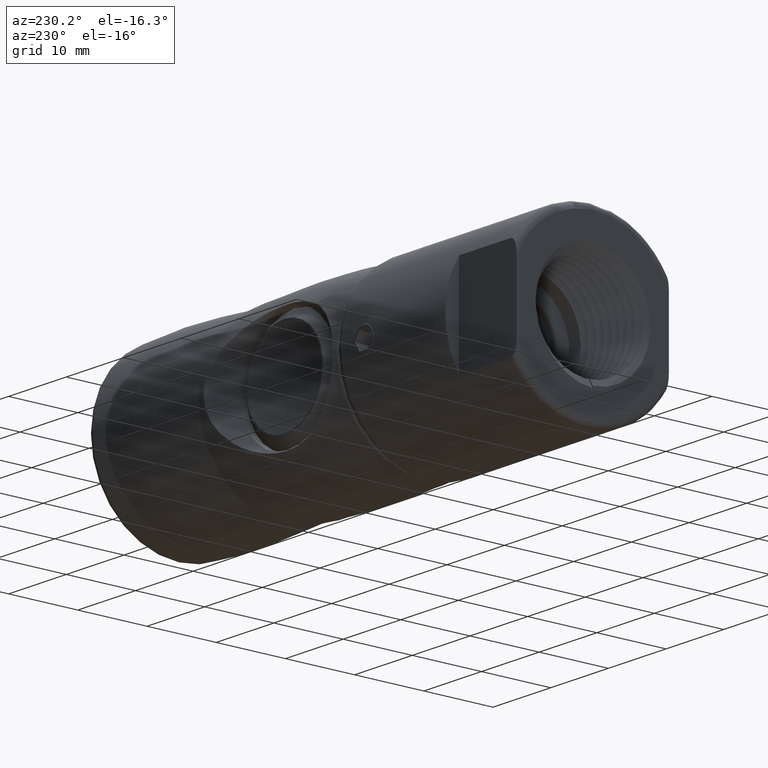
[diagram: clean part render]
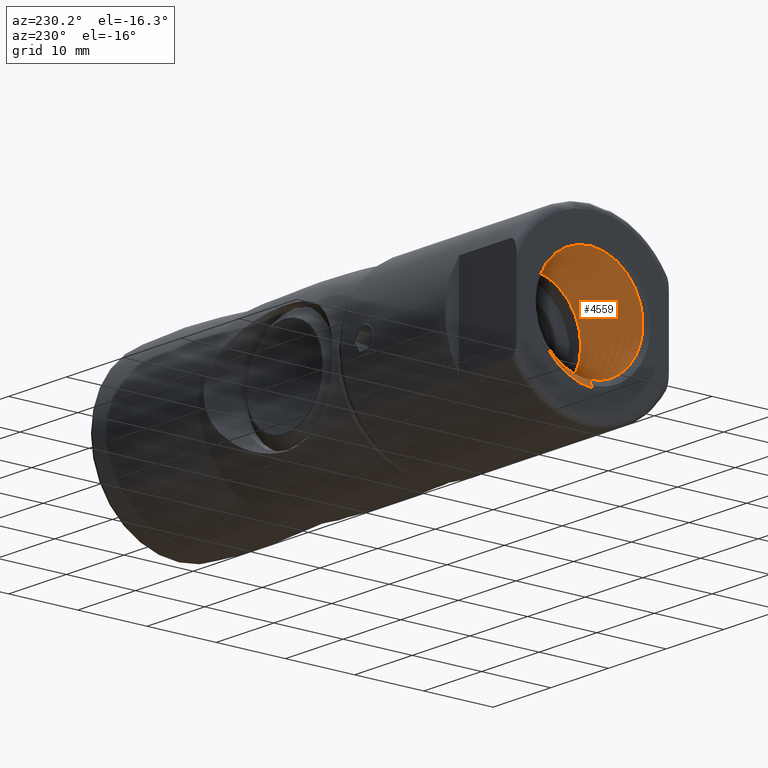
[diagram: same view with one face highlighted and labeled with its STEP entity id]
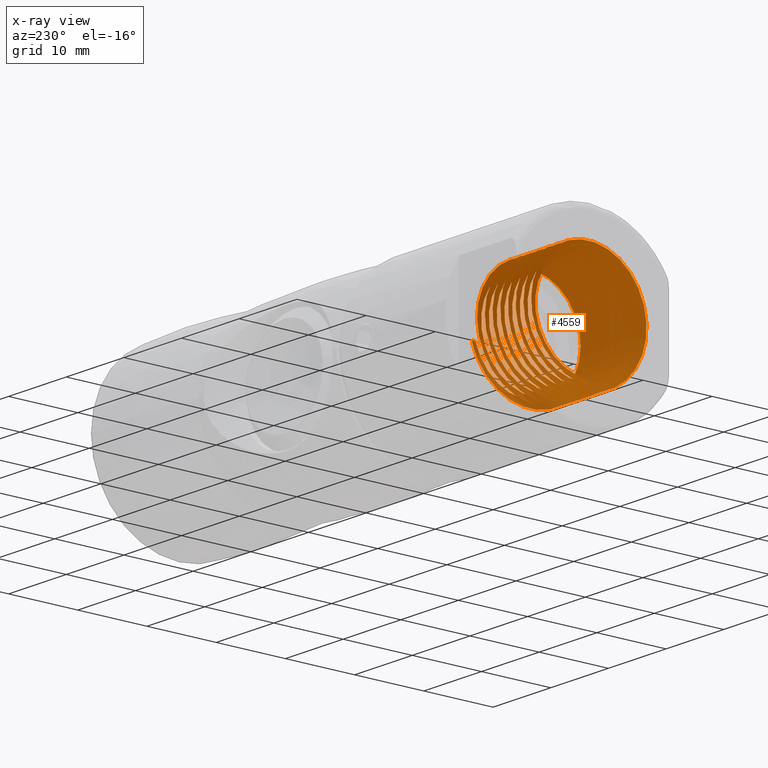
[diagram: x-ray of the same camera — body ghosted, the highlighted face saturated]
A machine part, auxiliary view. The second image highlights one B-rep face of the part: STEP entity #4559.
The next image is the same camera in x-ray: the body ghosted, the highlighted face saturated — about 3% of this face is hidden behind the body in this view.
In plain terms, the highlighted face is a freeform B-spline surface patch.
Its self-contained STEP definition (entity closure, byte-faithful):
#100=(
BOUNDED_CURVE()
B_SPLINE_CURVE(2,(#16887,#16888,#16889,#16890,#16891,#16892,#16893,#16894,
#16895,#16896,#16897,#16898,#16899,#16900,#16901,#16902,#16903,#16904,#16905,
#16906,#16907,#16908,#16909,#16910,#16911,#16912,#16913,#16914,#16915,#16916,
#16917,#16918,#16919,#16920,#16921,#16922,#16923,#16924,#16925,#16926,#16927,
#16928,#16929,#16930,#16931,#16932,#16933,#16934,#16935,#16936,#16937,#16938,
#16939,#16940,#16941,#16942,#16943,#16944,#16945,#16946,#16947,#16948,#16949,
#16950,#16951,#16952,#16953,#16954,#16955,#16956,#16957,#16958,#16959,#16960,
#16961,#16962,#16963,#16964,#16965,#16966,#16967,#16968,#16969,#16970,#16971,
#16972,#16973,#16974,#16975,#16976,#16977,#16978,#16979,#16980,#16981,#16982,
#16983,#16984,#16985,#16986,#16987,#16988,#16989,#16990,#16991,#16992,#16993,
#16994,#16995,#16996,#16997,#16998,#16999,#17000,#17001,#17002,#17003,#17004,
#17005,#17006,#17007,#17008,#17009,#17010,#17011,#17012,#17013,#17014,#17015,
#17016,#17017,#17018,#17019),.UNSPECIFIED.,.F.,.F.)
B_SPLINE_CURVE_WITH_KNOTS((3,2,2,2,2,2,2,2,2,2,2,2,2,2,2,2,2,2,2,2,2,2,
2,2,2,2,2,2,2,2,2,2,2,2,2,2,2,2,2,2,2,2,2,2,2,2,2,2,2,2,2,2,2,2,2,2,2,2,
2,2,2,2,2,2,2,2,3),(0.,0.0152277264765984,0.0304554529531967,0.0456831794297951,
0.0609109059063934,0.0761386323829918,0.0913663588595902,0.106594085336189,
0.121821811812787,0.137049538289385,0.152277264765984,0.167504991242582,
0.18273271771918,0.197960444195779,0.213188170672377,0.228415897148975,
0.243643623625574,0.258871350102172,0.274099076578771,0.289326803055369,
0.304554529531967,0.319782256008566,0.335009982485164,0.350237708961762,
0.365465435438361,0.380693161914959,0.395920888391557,0.411148614868156,
0.426376341344754,0.441604067821352,0.456831794297951,0.472059520774549,
0.487287247251148,0.502514973727746,0.517742700204344,0.532970426680943,
0.548198153157541,0.563425879634139,0.578653606110738,0.593881332587336,
0.609109059063935,0.624336785540533,0.639564512017131,0.65479223849373,
0.670019964970328,0.685247691446926,0.700475417923525,0.715703144400123,
0.730930870876721,0.74615859735332,0.761386323829918,0.776614050306517,
0.791841776783115,0.807069503259713,0.822297229736311,0.83752495621291,
0.852752682689508,0.867980409166107,0.883208135642705,0.898435862119303,
0.913663588595902,0.9288913150725,0.944119041549098,0.959346768025697,0.974574494502295,
0.989802220978893,1.),.UNSPECIFIED.)
CURVE()
GEOMETRIC_REPRESENTATION_ITEM()
RATIONAL_B_SPLINE_CURVE((1.,0.923879532511287,1.,0.923879532511287,1.,0.923879532511287,
1.,0.923879532511287,1.,0.923879532511287,1.,0.923879532511287,1.,0.923879532511287,
1.,0.923879532511287,1.,0.923879532511287,1.,0.923879532511287,1.,0.923879532511287,
1.,0.923879532511287,1.,0.923879532511287,1.,0.923879532511287,1.,0.923879532511287,
1.,0.923879532511287,1.,0.923879532511287,1.,0.923879532511287,1.,0.923879532511287,
1.,0.923879532511287,1.,0.923879532511287,1.,0.923879532511287,1.,0.923879532511287,
1.,0.923879532511287,1.,0.923879532511287,1.,0.923879532511287,1.,0.923879532511287,
1.,0.923879532511287,1.,0.923879532511287,1.,0.923879532511287,1.,0.923879532511287,
1.,0.923879532511287,1.,0.923879532511287,1.,0.923879532511287,1.,0.923879532511287,
1.,0.923879532511287,1.,0.923879532511287,1.,0.923879532511287,1.,0.923879532511287,
1.,0.923879532511287,1.,0.923879532511287,1.,0.923879532511287,1.,0.923879532511287,
1.,0.923879532511287,1.,0.923879532511287,1.,0.923879532511287,1.,0.923879532511287,
1.,0.923879532511287,1.,0.923879532511287,1.,0.923879532511287,1.,0.923879532511287,
1.,0.923879532511287,1.,0.923879532511287,1.,0.923879532511287,1.,0.923879532511287,
1.,0.923879532511287,1.,0.923879532511287,1.,0.923879532511287,1.,0.923879532511287,
1.,0.923879532511287,1.,0.923879532511287,1.,0.923879532511287,1.,0.923879532511287,
1.,0.923879532511287,1.,0.923879532511287,1.,0.949023269650518,0.966323236038588))
REPRESENTATION_ITEM('')
);
#187=(
BOUNDED_SURFACE()
B_SPLINE_SURFACE(1,2,((#16621,#16622,#16623,#16624,#16625,#16626,#16627,
#16628,#16629,#16630,#16631,#16632,#16633,#16634,#16635,#16636,#16637,#16638,
#16639,#16640,#16641,#16642,#16643,#16644,#16645,#16646,#16647,#16648,#16649,
#16650,#16651,#16652,#16653,#16654,#16655,#16656,#16657,#16658,#16659,#16660,
#16661,#16662,#16663,#16664,#16665,#16666,#16667,#16668,#16669,#16670,#16671,
#16672,#16673,#16674,#16675,#16676,#16677,#16678,#16679,#16680,#16681,#16682,
#16683,#16684,#16685,#16686,#16687,#16688,#16689,#16690,#16691,#16692,#16693,
#16694,#16695,#16696,#16697,#16698,#16699,#16700,#16701,#16702,#16703,#16704,
#16705,#16706,#16707,#16708,#16709,#16710,#16711,#16712,#16713,#16714,#16715,
#16716,#16717,#16718,#16719,#16720,#16721,#16722,#16723,#16724,#16725,#16726,
#16727,#16728,#16729,#16730,#16731,#16732,#16733,#16734,#16735,#16736,#16737,
#16738,#16739,#16740,#16741,#16742,#16743,#16744,#16745,#16746,#16747,#16748,
#16749,#16750,#16751,#16752,#16753),(#16754,#16755,#16756,#16757,#16758,
#16759,#16760,#16761,#16762,#16763,#16764,#16765,#16766,#16767,#16768,#16769,
#16770,#16771,#16772,#16773,#16774,#16775,#16776,#16777,#16778,#16779,#16780,
#16781,#16782,#16783,#16784,#16785,#16786,#16787,#16788,#16789,#16790,#16791,
#16792,#16793,#16794,#16795,#16796,#16797,#16798,#16799,#16800,#16801,#16802,
#16803,#16804,#16805,#16806,#16807,#16808,#16809,#16810,#16811,#16812,#16813,
#16814,#16815,#16816,#16817,#16818,#16819,#16820,#16821,#16822,#16823,#16824,
#16825,#16826,#16827,#16828,#16829,#16830,#16831,#16832,#16833,#16834,#16835,
#16836,#16837,#16838,#16839,#16840,#16841,#16842,#16843,#16844,#16845,#16846,
#16847,#16848,#16849,#16850,#16851,#16852,#16853,#16854,#16855,#16856,#16857,
#16858,#16859,#16860,#16861,#16862,#16863,#16864,#16865,#16866,#16867,#16868,
#16869,#16870,#16871,#16872,#16873,#16874,#16875,#16876,#16877,#16878,#16879,
#16880,#16881,#16882,#16883,#16884,#16885,#16886)),.UNSPECIFIED.,.F.,.F.,
 .F.)
B_SPLINE_SURFACE_WITH_KNOTS((2,2),(3,2,2,2,2,2,2,2,2,2,2,2,2,2,2,2,2,2,
2,2,2,2,2,2,2,2,2,2,2,2,2,2,2,2,2,2,2,2,2,2,2,2,2,2,2,2,2,2,2,2,2,2,2,2,
2,2,2,2,2,2,2,2,2,2,2,2,3),(0.,1.00000012242849),(-1.22428485127557E-7,
0.0138888888888889,0.0277777777777778,0.0416666666666667,0.0555555555555556,
0.0694444444444444,0.0833333333333333,0.0972222222222222,0.111111111111111,
0.125,0.138888888888889,0.152777777777778,0.166666666666667,0.180555555555556,
0.194444444444444,0.208333333333333,0.222222222222222,0.236111111111111,
0.25,0.263888888888889,0.277777777777778,0.291666666666667,0.305555555555556,
0.319444444444444,0.333333333333333,0.347222222222222,0.361111111111111,
0.375,0.388888888888889,0.402777777777778,0.416666666666667,0.430555555555556,
0.444444444444444,0.458333333333333,0.472222222222222,0.486111111111111,
0.5,0.513888888888889,0.527777777777778,0.541666666666667,0.555555555555556,
0.569444444444444,0.583333333333333,0.597222222222222,0.611111111111111,
0.625,0.638888888888889,0.652777777777778,0.666666666666667,0.680555555555556,
0.694444444444444,0.708333333333333,0.722222222222222,0.736111111111111,
0.75,0.763888888888889,0.777777777777778,0.791666666666667,0.805555555555556,
0.819444444444444,0.833333333333333,0.847222222222222,0.861111111111111,
0.875,0.888888888888889,0.902777777777778,0.912079068595293),
 .UNSPECIFIED.)
GEOMETRIC_REPRESENTATION_ITEM()
RATIONAL_B_SPLINE_SURFACE(((1.00000134199298,0.923878861520713,1.,0.923879532511287,
1.,0.923879532511287,1.,0.923879532511287,1.,0.923879532511287,1.,0.923879532511287,
1.,0.923879532511287,1.,0.923879532511287,1.,0.923879532511287,1.,0.923879532511287,
1.,0.923879532511287,1.,0.923879532511287,1.,0.923879532511287,1.,0.923879532511287,
1.,0.923879532511287,1.,0.923879532511287,1.,0.923879532511287,1.,0.923879532511287,
1.,0.923879532511287,1.,0.923879532511287,1.,0.923879532511287,1.,0.923879532511287,
1.,0.923879532511287,1.,0.923879532511287,1.,0.923879532511287,1.,0.923879532511287,
1.,0.923879532511287,1.,0.923879532511287,1.,0.923879532511287,1.,0.923879532511287,
1.,0.923879532511287,1.,0.923879532511287,1.,0.923879532511287,1.,0.923879532511287,
1.,0.923879532511287,1.,0.923879532511287,1.,0.923879532511287,1.,0.923879532511287,
1.,0.923879532511287,1.,0.923879532511287,1.,0.923879532511287,1.,0.923879532511287,
1.,0.923879532511287,1.,0.923879532511287,1.,0.923879532511287,1.,0.923879532511287,
1.,0.923879532511287,1.,0.923879532511287,1.,0.923879532511287,1.,0.923879532511287,
1.,0.923879532511287,1.,0.923879532511287,1.,0.923879532511287,1.,0.923879532511287,
1.,0.923879532511287,1.,0.923879532511287,1.,0.923879532511287,1.,0.923879532511287,
1.,0.923879532511287,1.,0.923879532511287,1.,0.923879532511287,1.,0.923879532511287,
1.,0.923879532511287,1.,0.923879532511287,1.,0.923879532511287,1.,0.949022660420002,
0.966323649557303),(1.00000134199298,0.923878861520713,1.,0.923879532511287,
1.,0.923879532511287,1.,0.923879532511287,1.,0.923879532511287,1.,0.923879532511287,
1.,0.923879532511287,1.,0.923879532511287,1.,0.923879532511287,1.,0.923879532511287,
1.,0.923879532511287,1.,0.923879532511287,1.,0.923879532511287,1.,0.923879532511287,
1.,0.923879532511287,1.,0.923879532511287,1.,0.923879532511287,1.,0.923879532511287,
1.,0.923879532511287,1.,0.923879532511287,1.,0.923879532511287,1.,0.923879532511287,
1.,0.923879532511287,1.,0.923879532511287,1.,0.923879532511287,1.,0.923879532511287,
1.,0.923879532511287,1.,0.923879532511287,1.,0.923879532511287,1.,0.923879532511287,
1.,0.923879532511287,1.,0.923879532511287,1.,0.923879532511287,1.,0.923879532511287,
1.,0.923879532511287,1.,0.923879532511287,1.,0.923879532511287,1.,0.923879532511287,
1.,0.923879532511287,1.,0.923879532511287,1.,0.923879532511287,1.,0.923879532511287,
1.,0.923879532511287,1.,0.923879532511287,1.,0.923879532511287,1.,0.923879532511287,
1.,0.923879532511287,1.,0.923879532511287,1.,0.923879532511287,1.,0.923879532511287,
1.,0.923879532511287,1.,0.923879532511287,1.,0.923879532511287,1.,0.923879532511287,
1.,0.923879532511287,1.,0.923879532511287,1.,0.923879532511287,1.,0.923879532511287,
1.,0.923879532511287,1.,0.923879532511287,1.,0.923879532511287,1.,0.923879532511287,
1.,0.923879532511287,1.,0.923879532511287,1.,0.923879532511287,1.,0.949022660420002,
0.966323649557303)))
REPRESENTATION_ITEM('')
SURFACE()
);
#403=B_SPLINE_CURVE_WITH_KNOTS('',3,(#15670,#15671,#15672,#15673,#15674,
#15675,#15676,#15677,#15678,#15679,#15680,#15681,#15682,#15683,#15684,#15685,
#15686,#15687,#15688,#15689),.UNSPECIFIED.,.F.,.F.,(4,2,2,2,2,2,2,2,2,4),
(-2.35794953893,-2.30892579897578,-2.01094316405541,-1.72375247711722,-1.42559058793833,
-1.13832037932491,-0.839985381375789,-0.552630202154927,-0.275680020086129,
-1.00000000013978E-6),.UNSPECIFIED.);
#405=B_SPLINE_CURVE_WITH_KNOTS('',3,(#15724,#15725,#15726,#15727,#15728,
#15729,#15730,#15731,#15732,#15733,#15734,#15735,#15736,#15737,#15738,#15739,
#15740,#15741,#15742,#15743,#15744,#15745,#15746,#15747,#15748,#15749,#15750,
#15751,#15752,#15753,#15754,#15755,#15756,#15757,#15758,#15759),
 .UNSPECIFIED.,.F.,.F.,(4,2,2,2,2,2,2,2,2,2,2,2,2,2,2,2,2,4),(-7.06884557318471,
-6.98131214431349,-6.6849882380802,-6.398084364398,-6.10153199606003,-5.81463949636727,
-5.51786433568818,-5.23096673325952,-4.93397470789059,-4.64705702951306,
-4.34985425961867,-4.0629030449697,-3.76549578151532,-3.47849906500195,
-3.18089363239429,-2.89384090133594,-2.59604364491526,-2.35794953893),
 .UNSPECIFIED.);
#407=B_SPLINE_CURVE_WITH_KNOTS('',3,(#15800,#15801,#15802,#15803,#15804,
#15805,#15806,#15807,#15808,#15809,#15810,#15811,#15812,#15813,#15814,#15815,
#15816,#15817,#15818,#15819,#15820,#15821,#15822,#15823,#15824,#15825,#15826,
#15827,#15828,#15829,#15830,#15831,#15832,#15833,#15834,#15835),
 .UNSPECIFIED.,.F.,.F.,(4,2,2,2,2,2,2,2,2,2,2,2,2,2,2,2,2,4),(-11.7785260544861,
-11.6411879787219,-11.3468422830385,-11.0591030898894,-10.7645010492073,
-10.4769470857724,-10.1820898847401,-9.8946969855653,-9.59958658070677,
-9.31233081101023,-9.01696988097946,-8.72982780345587,-8.43421969200904,
-8.14716860959868,-7.85131726285274,-7.56433543229432,-7.26824533188933,
-7.06884557318471),.UNSPECIFIED.);
#409=B_SPLINE_CURVE_WITH_KNOTS('',3,(#15876,#15877,#15878,#15879,#15880,
#15881,#15882,#15883,#15884,#15885,#15886,#15887,#15888,#15889,#15890,#15891,
#15892,#15893,#15894,#15895,#15896,#15897,#15898,#15899,#15900,#15901,#15902,
#15903,#15904,#15905,#15906,#15907,#15908,#15909,#15910,#15911),
 .UNSPECIFIED.,.F.,.F.,(4,2,2,2,2,2,2,2,2,2,2,2,2,2,2,2,2,4),(-16.4880704978707,
-16.2981951073469,-16.0058415814205,-15.7158161186981,-15.4232271981928,
-15.1335547251614,-14.8407248723297,-14.5513894074048,-14.2583138697879,
-13.9692975638538,-13.6759724132362,-13.3872557378323,-13.0936778980965,
-12.805239868675,-12.5114071318537,-12.2232254922479,-11.9291365133265,
-11.7785260544861),.UNSPECIFIED.);
#411=B_SPLINE_CURVE_WITH_KNOTS('',3,(#15952,#15953,#15954,#15955,#15956,
#15957,#15958,#15959,#15960,#15961,#15962,#15963,#15964,#15965,#15966,#15967,
#15968,#15969,#15970,#15971,#15972,#15973,#15974,#15975,#15976,#15977,#15978,
#15979,#15980,#15981,#15982,#15983,#15984,#15985,#15986,#15987),
 .UNSPECIFIED.,.F.,.F.,(4,2,2,2,2,2,2,2,2,2,2,2,2,2,2,2,2,4),(-21.1983812391429,
-20.9635606830607,-20.6728162421652,-20.3796454624358,-20.0887308648138,
-19.7959645560188,-19.5048702859864,-19.212509311809,-18.9212260898614,
-18.6292693813739,-18.3377882409848,-18.0462326810055,-17.7545450463067,
-17.4633853815447,-17.1714831443691,-16.8807119302561,-16.5885875249116,
-16.4880704978707),.UNSPECIFIED.);
#413=B_SPLINE_CURVE_WITH_KNOTS('',3,(#16028,#16029,#16030,#16031,#16032,
#16033,#16034,#16035,#16036,#16037,#16038,#16039,#16040,#16041,#16042,#16043,
#16044,#16045,#16046,#16047,#16048,#16049,#16050,#16051,#16052,#16053,#16054,
#16055,#16056,#16057,#16058,#16059,#16060,#16061,#16062,#16063),
 .UNSPECIFIED.,.F.,.F.,(4,2,2,2,2,2,2,2,2,2,2,2,2,2,2,2,2,4),(-25.9109344930174,
-25.6438620825397,-25.3541306513896,-25.0579359633697,-24.7681109671002,
-24.47226317202,-24.1823355098563,-23.8868451442087,-23.5968054893374,-23.3016824714535,
-23.0115213088711,-22.71677477779,-22.4264824482747,-22.1321205947056,-21.8416873449134,
-21.5477172370371,-21.2571332755689,-21.1983812391429),.UNSPECIFIED.);
#415=B_SPLINE_CURVE_WITH_KNOTS('',3,(#16108,#16109,#16110,#16111,#16112,
#16113,#16114,#16115,#16116,#16117,#16118,#16119,#16120,#16121,#16122,#16123,
#16124,#16125,#16126,#16127,#16128,#16129,#16130,#16131,#16132,#16133,#16134,
#16135,#16136,#16137,#16138,#16139,#16140,#16141,#16142,#16143,#16144,#16145),
 .UNSPECIFIED.,.F.,.F.,(4,2,2,2,2,2,2,2,2,2,2,2,2,2,2,2,2,2,4),(-35.3508891733278,
-35.347807024069,-35.058712468714,-34.7580738165976,-34.4689577743233,-34.1682522247599,
-33.8791949627026,-33.5785819225224,-33.2896115789978,-32.9890931698766,
-32.7002111328705,-32.3997896347593,-32.1109973111717,-31.8106751712886,
-31.5219739728728,-31.2217538147172,-30.9331451407682,-30.6330297730516,
-30.6278550714248),.UNSPECIFIED.);
#417=B_SPLINE_CURVE_WITH_KNOTS('',3,(#16179,#16180,#16181,#16182,#16183,
#16184,#16185,#16186,#16187,#16188,#16189,#16190,#16191,#16192,#16193,#16194,
#16195,#16196,#16197,#16198,#16199,#16200,#16201,#16202,#16203,#16204),
 .UNSPECIFIED.,.F.,.F.,(4,2,2,2,2,2,2,2,2,2,2,2,4),(-38.6959124408301,-38.4930383476158,
-38.2937940384954,-38.0047533326918,-37.7049649107626,-37.4159214405491,
-37.1159481333638,-36.8268976424206,-36.5267472949179,-36.2376857954479,
-35.9373658321502,-35.6482895922971,-35.3508891733278),.UNSPECIFIED.);
#430=B_SPLINE_CURVE_WITH_KNOTS('',3,(#16452,#16453,#16454,#16455,#16456,
#16457,#16458,#16459,#16460,#16461,#16462,#16463,#16464,#16465,#16466,#16467,
#16468,#16469,#16470,#16471,#16472,#16473,#16474,#16475,#16476,#16477,#16478,
#16479,#16480,#16481,#16482,#16483,#16484,#16485,#16486,#16487),
 .UNSPECIFIED.,.F.,.F.,(4,2,2,2,2,2,2,2,2,2,2,2,2,2,2,2,2,4),(-30.6278550714248,
-30.3445149893935,-30.0445074147611,-29.7560878285616,-29.456191251958,
-29.1678680818786,-28.8680859183831,-28.5798602595699,-28.280196141504,
-27.9920689249336,-27.6925267080132,-27.4044986537395,-27.1050824220166,
-26.8171539859186,-26.5178680552275,-26.2300393688964,-25.9403926599445,
-25.9109344930174),.UNSPECIFIED.);
#436=B_SPLINE_CURVE_WITH_KNOTS('',3,(#16615,#16616,#16617,#16618,#16619,
#16620),.UNSPECIFIED.,.F.,.F.,(4,2,4),(0.,0.0659847088427753,0.131970417249497),
 .UNSPECIFIED.);
#623=LINE('',#17020,#809);
#809=VECTOR('',#6464,10.);
#1187=FACE_OUTER_BOUND('',#1484,.T.);
#1484=EDGE_LOOP('',(#4257,#4258,#4259,#4260,#4261,#4262,#4263,#4264,#4265,
#4266,#4267,#4268));
#2220=VERTEX_POINT('',#15667);
#2221=VERTEX_POINT('',#15669);
#2225=VERTEX_POINT('',#15722);
#2227=VERTEX_POINT('',#15798);
#2229=VERTEX_POINT('',#15874);
#2231=VERTEX_POINT('',#15950);
#2233=VERTEX_POINT('',#16026);
#2236=VERTEX_POINT('',#16105);
#2237=VERTEX_POINT('',#16107);
#2240=VERTEX_POINT('',#16177);
#2282=VERTEX_POINT('',#16569);
#2283=VERTEX_POINT('',#16613);
#2856=EDGE_CURVE('',#2220,#2221,#403,.T.);
#2861=EDGE_CURVE('',#2225,#2220,#405,.T.);
#2864=EDGE_CURVE('',#2227,#2225,#407,.T.);
#2867=EDGE_CURVE('',#2229,#2227,#409,.T.);
#2870=EDGE_CURVE('',#2231,#2229,#411,.T.);
#2873=EDGE_CURVE('',#2233,#2231,#413,.T.);
#2878=EDGE_CURVE('',#2236,#2237,#415,.T.);
#2882=EDGE_CURVE('',#2240,#2236,#417,.T.);
#2933=EDGE_CURVE('',#2237,#2233,#430,.T.);
#2948=EDGE_CURVE('',#2283,#2240,#436,.T.);
#2949=EDGE_CURVE('',#2282,#2283,#100,.T.);
#2950=EDGE_CURVE('',#2221,#2282,#623,.T.);
#4257=ORIENTED_EDGE('',*,*,#2948,.F.);
#4258=ORIENTED_EDGE('',*,*,#2949,.F.);
#4259=ORIENTED_EDGE('',*,*,#2950,.F.);
#4260=ORIENTED_EDGE('',*,*,#2856,.F.);
#4261=ORIENTED_EDGE('',*,*,#2861,.F.);
#4262=ORIENTED_EDGE('',*,*,#2864,.F.);
#4263=ORIENTED_EDGE('',*,*,#2867,.F.);
#4264=ORIENTED_EDGE('',*,*,#2870,.F.);
#4265=ORIENTED_EDGE('',*,*,#2873,.F.);
#4266=ORIENTED_EDGE('',*,*,#2933,.F.);
#4267=ORIENTED_EDGE('',*,*,#2878,.F.);
#4268=ORIENTED_EDGE('',*,*,#2882,.F.);
#4559=ADVANCED_FACE('',(#1187),#187,.F.);
#6464=DIRECTION('',(-0.499815579062892,0.0135789147587954,-0.866025403784438));
#15667=CARTESIAN_POINT('',(-17.9699063343833,2.35207455603743E-14,7.4750000000019));
#15669=CARTESIAN_POINT('',(-18.6403912950684,-0.0179201504585143,-7.47497851958358));
#15670=CARTESIAN_POINT('Ctrl Pts',(-17.9699063343833,4.60388763255205E-14,
7.4750000000019));
#15671=CARTESIAN_POINT('Ctrl Pts',(-17.9743189613187,0.162973918772018,
7.4750000000019));
#15672=CARTESIAN_POINT('Ctrl Pts',(-17.9787790684853,0.32611245514205,7.46967021265649));
#15673=CARTESIAN_POINT('Ctrl Pts',(-18.010817264531,1.48018677913476,7.39398665117746));
#15674=CARTESIAN_POINT('Ctrl Pts',(-18.0399304276707,2.44837795596239,7.13213543933712));
#15675=CARTESIAN_POINT('Ctrl Pts',(-18.0968987819793,4.19351941055325,6.26148218375739));
#15676=CARTESIAN_POINT('Ctrl Pts',(-18.1232736034628,4.95998630380559,5.6736431880254));
#15677=CARTESIAN_POINT('Ctrl Pts',(-18.1772174025781,6.25371487381713,4.21355777006846));
#15678=CARTESIAN_POINT('Ctrl Pts',(-18.2063262625281,6.75782259215447,3.34585840861948));
#15679=CARTESIAN_POINT('Ctrl Pts',(-18.2633335100675,7.38554229717218,1.49862784608235));
#15680=CARTESIAN_POINT('Ctrl Pts',(-18.289807772459,7.51657431640562,0.541432170662463));
#15681=CARTESIAN_POINT('Ctrl Pts',(-18.3436780608366,7.40839143027235,-1.40702850537942));
#15682=CARTESIAN_POINT('Ctrl Pts',(-18.372782175533,7.15579985628974,-2.37874632754107));
#15683=CARTESIAN_POINT('Ctrl Pts',(-18.4298256100347,6.3013685676157,-4.13343123806299));
#15684=CARTESIAN_POINT('Ctrl Pts',(-18.456397516069,5.72063540884773,-4.9057862414029));
#15685=CARTESIAN_POINT('Ctrl Pts',(-18.5082186508706,4.32517630467266,-6.16604147757909));
#15686=CARTESIAN_POINT('Ctrl Pts',(-18.5351207461246,3.5316773951516,-6.65239752687091));
#15687=CARTESIAN_POINT('Ctrl Pts',(-18.5890128610395,1.81181011671628,-7.31003990895298));
#15688=CARTESIAN_POINT('Ctrl Pts',(-18.6155443423274,0.900671686814423,
-7.47718070704018));
#15689=CARTESIAN_POINT('Ctrl Pts',(-18.6403912950684,-0.0179201504588219,
-7.47497851958358));
#15722=CARTESIAN_POINT('',(-16.6299063343833,2.69262361333058E-14,7.4750000000019));
#15724=CARTESIAN_POINT('Ctrl Pts',(-16.6299063343833,5.17754397295391E-14,
7.4750000000019));
#15725=CARTESIAN_POINT('Ctrl Pts',(-16.6377784565051,0.290745311136095,
7.4750000000019));
#15726=CARTESIAN_POINT('Ctrl Pts',(-16.6458192772024,0.581798033331615,
7.45803745900459));
#15727=CARTESIAN_POINT('Ctrl Pts',(-16.6818510727218,1.85298278254664,7.30878384349024));
#15728=CARTESIAN_POINT('Ctrl Pts',(-16.7109671000765,2.80176530838701,7.00013772568941));
#15729=CARTESIAN_POINT('Ctrl Pts',(-16.767511803067,4.49691072347984,6.04719206640842));
#15730=CARTESIAN_POINT('Ctrl Pts',(-16.7931106486671,5.23308992988014,5.42268324646065));
#15731=CARTESIAN_POINT('Ctrl Pts',(-16.8477594894444,6.45013272923412,3.90500903167388));
#15732=CARTESIAN_POINT('Ctrl Pts',(-16.8768795801814,6.90954857211846,3.01850829689434));
#15733=CARTESIAN_POINT('Ctrl Pts',(-16.933489103652,7.44781951574734,1.14916718372771));
#15734=CARTESIAN_POINT('Ctrl Pts',(-16.9591749590203,7.53361530934739,0.18767454483301));
#15735=CARTESIAN_POINT('Ctrl Pts',(-17.0137257483364,7.33475667186933,-1.74815534515423));
#15736=CARTESIAN_POINT('Ctrl Pts',(-17.04284833769,7.03920295155475,-2.70264056803305));
#15737=CARTESIAN_POINT('Ctrl Pts',(-17.099519152137,6.10934519681183,-4.41208121884078));
#15738=CARTESIAN_POINT('Ctrl Pts',(-17.1252968176541,5.49523519529982,-5.15683276729922));
#15739=CARTESIAN_POINT('Ctrl Pts',(-17.1797519516293,3.99373182128463,-6.3957919381835));
#15740=CARTESIAN_POINT('Ctrl Pts',(-17.2088756260145,3.11235567655342,-6.86798573137531));
#15741=CARTESIAN_POINT('Ctrl Pts',(-17.2656042459146,1.24908942635865,-7.43171442874048));
#15742=CARTESIAN_POINT('Ctrl Pts',(-17.2914774881154,0.288834456367419,
-7.53041475403332));
#15743=CARTESIAN_POINT('Ctrl Pts',(-17.3458396284988,-1.65081486231581,
-7.35745564695454));
#15744=CARTESIAN_POINT('Ctrl Pts',(-17.3749631274266,-2.61042294642996,
-7.07410551237428));
#15745=CARTESIAN_POINT('Ctrl Pts',(-17.4317461346595,-4.33296975565645,
-6.16571947716319));
#15746=CARTESIAN_POINT('Ctrl Pts',(-17.4577177240281,-5.08563956376386,
-5.56120081387136));
#15747=CARTESIAN_POINT('Ctrl Pts',(-17.5119897612348,-6.34469662943843,
-4.07472827927544));
#15748=CARTESIAN_POINT('Ctrl Pts',(-17.5411119762035,-6.82860640248164,
-3.19822608000773));
#15749=CARTESIAN_POINT('Ctrl Pts',(-17.5979460400827,-7.41575555043155,
-1.34070076390762));
#15750=CARTESIAN_POINT('Ctrl Pts',(-17.6240178034921,-7.52630474841137,
-0.381573883849985));
#15751=CARTESIAN_POINT('Ctrl Pts',(-17.6782028190777,-7.37710729728961,
1.5614297895869));
#15752=CARTESIAN_POINT('Ctrl Pts',(-17.7073227898354,-7.10500254699676,
2.52559691352523));
#15753=CARTESIAN_POINT('Ctrl Pts',(-17.7642046837582,-6.2163665942864,4.26003949727315));
#15754=CARTESIAN_POINT('Ctrl Pts',(-17.7903775685741,-5.62060546806733,
5.0199490950966));
#15755=CARTESIAN_POINT('Ctrl Pts',(-17.844478797973,-4.14794937186895,6.29725546038878));
#15756=CARTESIAN_POINT('Ctrl Pts',(-17.8735957065813,-3.27601810295093,
6.79179932691431));
#15757=CARTESIAN_POINT('Ctrl Pts',(-17.9257511048025,-1.579085755506,7.34927790299912));
#15758=CARTESIAN_POINT('Ctrl Pts',(-17.9484754924967,-0.791516784905875,
7.47500000000191));
#15759=CARTESIAN_POINT('Ctrl Pts',(-17.9699063343833,4.64905891561784E-14,
7.4750000000019));
#15798=CARTESIAN_POINT('',(-15.2899063343833,3.2006515419601E-15,7.4750000000019));
#15800=CARTESIAN_POINT('Ctrl Pts',(-15.2899063343833,6.01184441542913E-15,
7.4750000000019));
#15801=CARTESIAN_POINT('Ctrl Pts',(-15.3022501957599,0.455902456925954,
7.4750000000019));
#15802=CARTESIAN_POINT('Ctrl Pts',(-15.3150176869113,0.911884202471785,
7.43329309794685));
#15803=CARTESIAN_POINT('Ctrl Pts',(-15.3562222805782,2.32733951147047,7.17095519440215));
#15804=CARTESIAN_POINT('Ctrl Pts',(-15.3852347540845,3.24785464691238,6.8037150458731));
#15805=CARTESIAN_POINT('Ctrl Pts',(-15.4411385779696,4.87581740912329,5.74654143318034));
#15806=CARTESIAN_POINT('Ctrl Pts',(-15.4663349750284,5.57244373667215,5.07387486497462));
#15807=CARTESIAN_POINT('Ctrl Pts',(-15.5218124456218,6.68641540928102,3.48319216768516));
#15808=CARTESIAN_POINT('Ctrl Pts',(-15.5508455466851,7.08583140494093,2.57521987145542));
#15809=CARTESIAN_POINT('Ctrl Pts',(-15.6068402779311,7.50553146669922,0.67980423842908));
#15810=CARTESIAN_POINT('Ctrl Pts',(-15.6320501890591,7.53076481239821,-0.287609859149055));
#15811=CARTESIAN_POINT('Ctrl Pts',(-15.6874235213663,7.21030422138513,-2.20316850746395));
#15812=CARTESIAN_POINT('Ctrl Pts',(-15.7164749685008,6.85829844409979,-3.13147905250354));
#15813=CARTESIAN_POINT('Ctrl Pts',(-15.7725578838179,5.82839187756798,-4.77744048494257));
#15814=CARTESIAN_POINT('Ctrl Pts',(-15.7977932664165,5.16852731669338,-5.48456163030238));
#15815=CARTESIAN_POINT('Ctrl Pts',(-15.8530617712415,3.59693316501305,-6.6261718263969));
#15816=CARTESIAN_POINT('Ctrl Pts',(-15.8821292931209,2.69429722286851,-7.04164886547144));
#15817=CARTESIAN_POINT('Ctrl Pts',(-15.9382974425481,0.805480120327995,
-7.49295620628383));
#15818=CARTESIAN_POINT('Ctrl Pts',(-15.9635696796173,-0.160331108419987,
-7.53442004994202));
#15819=CARTESIAN_POINT('Ctrl Pts',(-16.0187331000028,-2.08170459595575,
-7.24653074510374));
#15820=CARTESIAN_POINT('Ctrl Pts',(-16.0478144638509,-3.0173666313638,-6.90949856252253));
#15821=CARTESIAN_POINT('Ctrl Pts',(-16.1040647070626,-4.68064487844239,
-5.90626789580422));
#15822=CARTESIAN_POINT('Ctrl Pts',(-16.129384471628,-5.39792772156989,-5.25878430892811));
#15823=CARTESIAN_POINT('Ctrl Pts',(-16.1844429820489,-6.56610772949514,
-3.70587701783287));
#15824=CARTESIAN_POINT('Ctrl Pts',(-16.2135360197894,-6.99704838405927,
-2.80866053481722));
#15825=CARTESIAN_POINT('Ctrl Pts',(-16.2698650632783,-7.47887044195321,
-0.92645503440788));
#15826=CARTESIAN_POINT('Ctrl Pts',(-16.2952422029874,-7.53593977355539,
0.0378250741967312));
#15827=CARTESIAN_POINT('Ctrl Pts',(-16.3501964016238,-7.27938865548153,
1.96452470883394));
#15828=CARTESIAN_POINT('Ctrl Pts',(-16.3792990331828,-6.95686843390518,
2.90702564849804));
#15829=CARTESIAN_POINT('Ctrl Pts',(-16.4357034674204,-5.97938777420334,
4.58674843417153));
#15830=CARTESIAN_POINT('Ctrl Pts',(-16.4611469115853,-5.34372669262453,
5.31374806023814));
#15831=CARTESIAN_POINT('Ctrl Pts',(-16.5159978060705,-3.808862266716,6.50714605752472));
#15832=CARTESIAN_POINT('Ctrl Pts',(-16.5451080593724,-2.91705432526144,
6.95277864290705));
#15833=CARTESIAN_POINT('Ctrl Pts',(-16.5931052015383,-1.32298185111806,
7.38697505361546));
#15834=CARTESIAN_POINT('Ctrl Pts',(-16.6119737654,-0.66231319431481,7.47500000000191));
#15835=CARTESIAN_POINT('Ctrl Pts',(-16.6299063343833,5.38458166943201E-14,
7.4750000000019));
#15874=CARTESIAN_POINT('',(-13.9499063343833,-1.11574262791109E-14,7.4750000000019));
#15876=CARTESIAN_POINT('Ctrl Pts',(-13.9499063343833,-1.68417675303849E-14,
7.4750000000019));
#15877=CARTESIAN_POINT('Ctrl Pts',(-13.9669773007102,0.630491160998144,
7.4750000000019));
#15878=CARTESIAN_POINT('Ctrl Pts',(-13.9848476609376,1.25978879472105,7.39523094433587));
#15879=CARTESIAN_POINT('Ctrl Pts',(-14.0314537596239,2.81653304639055,6.99236348539337));
#15880=CARTESIAN_POINT('Ctrl Pts',(-14.0602276283486,3.70349301720476,6.56583402496256));
#15881=CARTESIAN_POINT('Ctrl Pts',(-14.1153432680526,5.25739055427122,5.40100038879489));
#15882=CARTESIAN_POINT('Ctrl Pts',(-14.1408766026613,5.91133572171607,4.67622389163952));
#15883=CARTESIAN_POINT('Ctrl Pts',(-14.1971157592894,6.91119900044256,3.01046436602515));
#15884=CARTESIAN_POINT('Ctrl Pts',(-14.2259253617826,7.24472512967157,2.08363906556552));
#15885=CARTESIAN_POINT('Ctrl Pts',(-14.2811421315613,7.5353738676792,0.163863595639434));
#15886=CARTESIAN_POINT('Ctrl Pts',(-14.3065924872006,7.49347987259541,-0.81022736252644));
#15887=CARTESIAN_POINT('Ctrl Pts',(-14.3627464408358,7.0388897074339,-2.6987390445147));
#15888=CARTESIAN_POINT('Ctrl Pts',(-14.3915904398495,6.62652901861223,-3.59420305653133));
#15889=CARTESIAN_POINT('Ctrl Pts',(-14.4469083505702,5.48768062205214,-5.16642252439697));
#15890=CARTESIAN_POINT('Ctrl Pts',(-14.4722863170786,4.77572152588172,-5.83086977056884));
#15891=CARTESIAN_POINT('Ctrl Pts',(-14.5283516743748,3.12802167855601,-6.85902774321483));
#15892=CARTESIAN_POINT('Ctrl Pts',(-14.5572285320344,2.20540196934089,-7.20881405128663));
#15893=CARTESIAN_POINT('Ctrl Pts',(-14.6126472079749,0.29124610342457,-7.53124808008705));
#15894=CARTESIAN_POINT('Ctrl Pts',(-14.6379641077082,-0.681186310242363,
-7.50603126594303));
#15895=CARTESIAN_POINT('Ctrl Pts',(-14.6939376917871,-2.57686916400278,
-7.08464318695843));
#15896=CARTESIAN_POINT('Ctrl Pts',(-14.7228456869205,-3.48084483143844,
-6.68701387669893));
#15897=CARTESIAN_POINT('Ctrl Pts',(-14.7783643672724,-5.07168468267424,
-5.57499962393029));
#15898=CARTESIAN_POINT('Ctrl Pts',(-14.8036321158053,-5.74683684787124,
-4.87611231314791));
#15899=CARTESIAN_POINT('Ctrl Pts',(-14.8595110081897,-6.80370208507005,
-3.24710966349955));
#15900=CARTESIAN_POINT('Ctrl Pts',(-14.8884482575743,-7.17004331608386,
-2.32907029667984));
#15901=CARTESIAN_POINT('Ctrl Pts',(-14.9440658038941,-7.52487005083008,
-0.420896052209547));
#15902=CARTESIAN_POINT('Ctrl Pts',(-14.9692967545161,-7.51654725418126,
0.549854144920333));
#15903=CARTESIAN_POINT('Ctrl Pts',(-15.0250783347271,-7.12888597956755,
2.45249644054823));
#15904=CARTESIAN_POINT('Ctrl Pts',(-15.0540428177308,-6.74636566393305,
3.36486338126202));
#15905=CARTESIAN_POINT('Ctrl Pts',(-15.109757733746,-5.66169817945889,4.97436960474816));
#15906=CARTESIAN_POINT('Ctrl Pts',(-15.1349644968797,-4.97596640842037,
5.66029484863788));
#15907=CARTESIAN_POINT('Ctrl Pts',(-15.1906464859721,-3.36605750280388,
6.74589413662091));
#15908=CARTESIAN_POINT('Ctrl Pts',(-15.2196360701772,-2.45292326353846,
7.1288564419371));
#15909=CARTESIAN_POINT('Ctrl Pts',(-15.2622774414293,-0.999797494378307,
7.42484236284798));
#15910=CARTESIAN_POINT('Ctrl Pts',(-15.276369559418,-0.499960974711526,
7.4750000000019));
#15911=CARTESIAN_POINT('Ctrl Pts',(-15.2899063343833,8.18789480661053E-15,
7.4750000000019));
#15950=CARTESIAN_POINT('',(-12.6099063343833,-2.32950580509316E-14,7.4750000000019));
#15952=CARTESIAN_POINT('Ctrl Pts',(-12.6099063343833,-6.26578021653487E-14,
7.4750000000019));
#15953=CARTESIAN_POINT('Ctrl Pts',(-12.631036645638,0.780417125787386,7.4750000000019));
#15954=CARTESIAN_POINT('Ctrl Pts',(-12.653364287519,1.55725975384949,7.35277904028744));
#15955=CARTESIAN_POINT('Ctrl Pts',(-12.7044874456009,3.22415929576119,6.81321151325232));
#15956=CARTESIAN_POINT('Ctrl Pts',(-12.7329536661317,4.079513050935,6.33819313791184));
#15957=CARTESIAN_POINT('Ctrl Pts',(-12.7873032442124,5.5673300672964,5.08288313719973));
#15958=CARTESIAN_POINT('Ctrl Pts',(-12.81376483353,6.18351721806651,4.31219350117659));
#15959=CARTESIAN_POINT('Ctrl Pts',(-12.8705513145109,7.08088467400817,2.58405178317392));
#15960=CARTESIAN_POINT('Ctrl Pts',(-12.8990560878753,7.35608382934884,1.64448873570198));
#15961=CARTESIAN_POINT('Ctrl Pts',(-12.9534943650699,7.53274349273061,-0.293430230182214));
#15962=CARTESIAN_POINT('Ctrl Pts',(-12.9798241682805,7.43011656864431,-1.27346758126782));
#15963=CARTESIAN_POINT('Ctrl Pts',(-13.0365554256464,6.85562969660138,-3.1333435924372));
#15964=CARTESIAN_POINT('Ctrl Pts',(-13.0650991311193,6.39134022549231,-3.99603905139198));
#15965=CARTESIAN_POINT('Ctrl Pts',(-13.119628649317,5.15627943222697,-5.49895953086182));
#15966=CARTESIAN_POINT('Ctrl Pts',(-13.1458290162082,4.39604416558866,-6.12377245947774));
#15967=CARTESIAN_POINT('Ctrl Pts',(-13.2025013710328,2.68178246489952,-7.04463226930591));
#15968=CARTESIAN_POINT('Ctrl Pts',(-13.2310841986352,1.74480019257172,-7.33311166834485));
#15969=CARTESIAN_POINT('Ctrl Pts',(-13.2857072740849,-0.189259643128688,
-7.53574163786662));
#15970=CARTESIAN_POINT('Ctrl Pts',(-13.3117816052678,-1.1679493731673,-7.44708869600194));
#15971=CARTESIAN_POINT('Ctrl Pts',(-13.3683912961754,-3.03476327497526,
-6.90002630707681));
#15972=CARTESIAN_POINT('Ctrl Pts',(-13.3970132330057,-3.90523080478485,
-6.44743149643198));
#15973=CARTESIAN_POINT('Ctrl Pts',(-13.4517319251053,-5.42429118751209,
-5.23428581982497));
#15974=CARTESIAN_POINT('Ctrl Pts',(-13.4776847074749,-6.05832071533572,
-4.48524725752831));
#15975=CARTESIAN_POINT('Ctrl Pts',(-13.5342279174701,-7.00424080713328,
-2.78606532451394));
#15976=CARTESIAN_POINT('Ctrl Pts',(-13.562888736644,-7.30694762804165,-1.85205581819715));
#15977=CARTESIAN_POINT('Ctrl Pts',(-13.6177048184204,-7.53738261906941,
0.0776932244494788));
#15978=CARTESIAN_POINT('Ctrl Pts',(-13.6435416422976,-7.4635980236701,1.05493299353729));
#15979=CARTESIAN_POINT('Ctrl Pts',(-13.7000145295718,-6.9458287345643,2.92890016437193));
#15980=CARTESIAN_POINT('Ctrl Pts',(-13.7287137823159,-6.50584804155469,
3.8074893239073));
#15981=CARTESIAN_POINT('Ctrl Pts',(-13.7836287133743,-5.31616984630007,
5.34359844109775));
#15982=CARTESIAN_POINT('Ctrl Pts',(-13.8093562689474,-4.57898789275609,
5.98736829304693));
#15983=CARTESIAN_POINT('Ctrl Pts',(-13.8657550013843,-2.89601284495968,
6.9597118539004));
#15984=CARTESIAN_POINT('Ctrl Pts',(-13.8944920127706,-1.96538715668291,
7.27748369732276));
#15985=CARTESIAN_POINT('Ctrl Pts',(-13.9315744271429,-0.667865421343783,
7.45264565987187));
#15986=CARTESIAN_POINT('Ctrl Pts',(-13.9408692349511,-0.333772043360896,
7.4750000000019));
#15987=CARTESIAN_POINT('Ctrl Pts',(-13.9499063343833,-1.7277845820729E-14,
7.4750000000019));
#16026=CARTESIAN_POINT('',(-11.2699063343833,1.19599637249804E-15,7.4750000000019));
#16028=CARTESIAN_POINT('Ctrl Pts',(-11.2699063343833,2.88449484174058E-14,
7.4750000000019));
#16029=CARTESIAN_POINT('Ctrl Pts',(-11.2939543142555,0.888176946693782,
7.4750000000019));
#16030=CARTESIAN_POINT('Ctrl Pts',(-11.3195225456015,1.77011008587396,7.31669467578063));
#16031=CARTESIAN_POINT('Ctrl Pts',(-11.3737911756611,3.50892373221126,6.67044229586789));
#16032=CARTESIAN_POINT('Ctrl Pts',(-11.4019797121749,4.34008998838485,6.16206559280447));
#16033=CARTESIAN_POINT('Ctrl Pts',(-11.4557278408481,5.77898300868469,4.84281175232493));
#16034=CARTESIAN_POINT('Ctrl Pts',(-11.4832235827879,6.36717054240047,4.0384048260043));
#16035=CARTESIAN_POINT('Ctrl Pts',(-11.5403350124343,7.18815576511732,2.26683736742732));
#16036=CARTESIAN_POINT('Ctrl Pts',(-11.5685543203957,7.42059460058364,1.32022564303252));
#16037=CARTESIAN_POINT('Ctrl Pts',(-11.6223664499704,7.51343305303864,-0.629052166412912));
#16038=CARTESIAN_POINT('Ctrl Pts',(-11.6497413700127,7.36509067513931,-1.61335565147084));
#16039=CARTESIAN_POINT('Ctrl Pts',(-11.7068221167061,6.70169791007312,-3.44908921810203));
#16040=CARTESIAN_POINT('Ctrl Pts',(-11.7350734631656,6.20029420801797,-4.28548779539574));
#16041=CARTESIAN_POINT('Ctrl Pts',(-11.7889528349471,4.89453931561788,-5.73486712342947));
#16042=CARTESIAN_POINT('Ctrl Pts',(-11.8162034227229,4.09734073210713,-6.32906782666821));
#16043=CARTESIAN_POINT('Ctrl Pts',(-11.8732509699506,2.33488340434743,-7.16646190013343));
#16044=CARTESIAN_POINT('Ctrl Pts',(-11.9015355724347,1.38961586016715,-7.40802972874759));
#16045=CARTESIAN_POINT('Ctrl Pts',(-11.9554854355264,-0.557372848720299,
-7.51879707966288));
#16046=CARTESIAN_POINT('Ctrl Pts',(-11.9826086235178,-1.54077817359333,
-7.38031515214831));
#16047=CARTESIAN_POINT('Ctrl Pts',(-12.0396202917317,-3.38190538614205,
-6.73598606431964));
#16048=CARTESIAN_POINT('Ctrl Pts',(-12.0679393019036,-4.22408273512731,
-6.24243499253886));
#16049=CARTESIAN_POINT('Ctrl Pts',(-12.1219628899542,-5.68510234923502,
-4.95179497303577));
#16050=CARTESIAN_POINT('Ctrl Pts',(-12.1489561369667,-6.28596911233872,
-4.1626098010784));
#16051=CARTESIAN_POINT('Ctrl Pts',(-12.2059290831218,-7.14155387949549,
-2.41039154580428));
#16052=CARTESIAN_POINT('Ctrl Pts',(-12.2342835694512,-7.39327941274955,
-1.46672190172436));
#16053=CARTESIAN_POINT('Ctrl Pts',(-12.2883840750876,-7.5239719272091,0.477633203866313));
#16054=CARTESIAN_POINT('Ctrl Pts',(-12.3152454519131,-7.39639482280737,
1.46002999987388));
#16055=CARTESIAN_POINT('Ctrl Pts',(-12.372176671309,-6.77322291131634,3.30700311818902));
#16056=CARTESIAN_POINT('Ctrl Pts',(-12.4005676010036,-6.28845520154721,
4.15550487190186));
#16057=CARTESIAN_POINT('Ctrl Pts',(-12.4547481481471,-5.01461738019836,
5.62934000212167));
#16058=CARTESIAN_POINT('Ctrl Pts',(-12.4814764236374,-4.23426910860125,
6.23753716317927));
#16059=CARTESIAN_POINT('Ctrl Pts',(-12.5383627544453,-2.49347735152948,
7.11312031044839));
#16060=CARTESIAN_POINT('Ctrl Pts',(-12.5667909749631,-1.55169675090004,
7.37605688341754));
#16061=CARTESIAN_POINT('Ctrl Pts',(-12.5992415804393,-0.39073955635265,
7.46734937800279));
#16062=CARTESIAN_POINT('Ctrl Pts',(-12.6046195365099,-0.19526014317824,
7.4750000000019));
#16063=CARTESIAN_POINT('Ctrl Pts',(-12.6099063343833,-6.27969898303604E-14,
7.4750000000019));
#16105=CARTESIAN_POINT('',(-8.58990633371611,-1.2321341411207E-8,7.4750000000019));
#16107=CARTESIAN_POINT('',(-9.92990633703788,4.90210964220244E-8,7.4750000000019));
#16108=CARTESIAN_POINT('Ctrl Pts',(-8.58990633404947,-1.23303811164267E-8,
7.4750000000019));
#16109=CARTESIAN_POINT('Ctrl Pts',(-8.59018371149158,0.0102445175949692,
7.4750000000188));
#16110=CARTESIAN_POINT('Ctrl Pts',(-8.59046073482097,0.0204900798690855,
7.47497893973303));
#16111=CARTESIAN_POINT('Ctrl Pts',(-8.61675304009428,0.991822759691445,
7.47098486492669));
#16112=CARTESIAN_POINT('Ctrl Pts',(-8.6445928228668,1.94315771646578,7.28171375093242));
#16113=CARTESIAN_POINT('Ctrl Pts',(-8.70198869789945,3.75740536162662,6.53883447672982));
#16114=CARTESIAN_POINT('Ctrl Pts',(-8.73097609327642,4.59695390990504,5.97847941780264));
#16115=CARTESIAN_POINT('Ctrl Pts',(-8.78401251322552,5.9789189372688,4.58820787748756));
#16116=CARTESIAN_POINT('Ctrl Pts',(-8.81184277020508,6.51863507364606,3.78238142228701));
#16117=CARTESIAN_POINT('Ctrl Pts',(-8.86923615501621,7.27827329622182,1.9751617354886));
#16118=CARTESIAN_POINT('Ctrl Pts',(-8.89824727411807,7.4768751641628,0.985384837096206));
#16119=CARTESIAN_POINT('Ctrl Pts',(-8.95128241754155,7.47317130459409,-0.974914374131673));
#16120=CARTESIAN_POINT('Ctrl Pts',(-8.97909215110177,7.28612984808676,-1.9264709991455));
#16121=CARTESIAN_POINT('Ctrl Pts',(-9.03648089329982,6.54751624393525,-3.74223357094088));
#16122=CARTESIAN_POINT('Ctrl Pts',(-9.06549498382938,5.98912709615744,-4.58309463109848));
#16123=CARTESIAN_POINT('Ctrl Pts',(-9.11855001350816,4.60219091042884,-5.96811293233131));
#16124=CARTESIAN_POINT('Ctrl Pts',(-9.14632393362385,3.79783646132177,-6.50962349929152));
#16125=CARTESIAN_POINT('Ctrl Pts',(-9.20370479512882,1.99279426083778,-7.27343023019614));
#16126=CARTESIAN_POINT('Ctrl Pts',(-9.2327220543393,1.00376306796593,-7.4743958883686));
#16127=CARTESIAN_POINT('Ctrl Pts',(-9.28579854484883,-0.956053089642736,
-7.47557805269305));
#16128=CARTESIAN_POINT('Ctrl Pts',(-9.31353401865262,-1.90784627916185,
-7.2909978188838));
#16129=CARTESIAN_POINT('Ctrl Pts',(-9.37090631329964,-3.72503856538927,
-6.55727214274488));
#16130=CARTESIAN_POINT('Ctrl Pts',(-9.39992694516155,-4.5671335554171,-6.00126140148657));
#16131=CARTESIAN_POINT('Ctrl Pts',(-9.45302657952668,-5.95551477740623,
-4.61843105299223));
#16132=CARTESIAN_POINT('Ctrl Pts',(-9.48072082934555,-6.49908679625225,
-3.81577635478796));
#16133=CARTESIAN_POINT('Ctrl Pts',(-9.5380838126477,-7.26771802757678,-2.01337929607312));
#16134=CARTESIAN_POINT('Ctrl Pts',(-9.56710802680685,-7.47144223342554,
-1.02522612004003));
#16135=CARTESIAN_POINT('Ctrl Pts',(-9.6202326011604,-7.47832951730555,0.934018814003579));
#16136=CARTESIAN_POINT('Ctrl Pts',(-9.64788270534342,-7.29662150565203,
1.88608837122143));
#16137=CARTESIAN_POINT('Ctrl Pts',(-9.70523556988809,-6.56859995016597,
3.7049403694782));
#16138=CARTESIAN_POINT('Ctrl Pts',(-9.73426358031516,-6.01536781883336,
4.54846716765385));
#16139=CARTESIAN_POINT('Ctrl Pts',(-9.78741500824425,-4.63733189283021,
5.94076450619587));
#16140=CARTESIAN_POINT('Ctrl Pts',(-9.81501790392979,-3.83665812063137,
6.48673954054848));
#16141=CARTESIAN_POINT('Ctrl Pts',(-9.87235977449879,-2.0373513002726,7.26098678387942));
#16142=CARTESIAN_POINT('Ctrl Pts',(-9.90139179778376,-1.05023073556685,
7.46792198951502));
#16143=CARTESIAN_POINT('Ctrl Pts',(-9.92897350161425,-0.0344283533174115,
7.47494054565288));
#16144=CARTESIAN_POINT('Ctrl Pts',(-9.9294402865053,-0.0172127964443151,
7.47500000011487));
#16145=CARTESIAN_POINT('Ctrl Pts',(-9.92990633571158,4.9057210358007E-8,
7.4750000000019));
#16177=CARTESIAN_POINT('',(-7.63972872602228,7.22320352368723,-1.92378685674786));
#16179=CARTESIAN_POINT('Ctrl Pts',(-7.63972872620402,7.22320352273358,-1.92378685648843));
#16180=CARTESIAN_POINT('Ctrl Pts',(-7.65931539255552,7.04945129568593,-2.57617082213433));
#16181=CARTESIAN_POINT('Ctrl Pts',(-7.67917168099829,6.78811867525559,-3.20200946608782));
#16182=CARTESIAN_POINT('Ctrl Pts',(-7.71798965515516,6.11066722605348,-4.35603050336513));
#16183=CARTESIAN_POINT('Ctrl Pts',(-7.73666414764646,5.70042720515039,-4.88060305419007));
#16184=CARTESIAN_POINT('Ctrl Pts',(-7.7807687694696,4.53884592347487,-6.01660126862417));
#16185=CARTESIAN_POINT('Ctrl Pts',(-7.80866773553491,3.72790558470994,-6.55005545567184));
#16186=CARTESIAN_POINT('Ctrl Pts',(-7.86602747022481,1.91544923964202,-7.29394415138507));
#16187=CARTESIAN_POINT('Ctrl Pts',(-7.89477623281089,0.926190335096484,
-7.48415091328099));
#16188=CARTESIAN_POINT('Ctrl Pts',(-7.94791889569941,-1.0326854257807,-7.46551251585142));
#16189=CARTESIAN_POINT('Ctrl Pts',(-7.97580432992131,-1.98348282069167,
-7.27090123491593));
#16190=CARTESIAN_POINT('Ctrl Pts',(-8.03317256131171,-3.79262747027603,
-6.5182384030416));
#16191=CARTESIAN_POINT('Ctrl Pts',(-8.06197572167933,-4.62791306699677,
-5.95429644041086));
#16192=CARTESIAN_POINT('Ctrl Pts',(-8.11509396075634,-6.00218045167769,
-4.55783616104136));
#16193=CARTESIAN_POINT('Ctrl Pts',(-8.14296675820326,-6.53804462742513,
-3.7488538097558));
#16194=CARTESIAN_POINT('Ctrl Pts',(-8.20034279780918,-7.28802274127199,
-1.93830049984091));
#16195=CARTESIAN_POINT('Ctrl Pts',(-8.22919684694885,-7.48143682889715,
-0.948763486056619));
#16196=CARTESIAN_POINT('Ctrl Pts',(-8.28229234943351,-7.46848020608943,
1.01073645381694));
#16197=CARTESIAN_POINT('Ctrl Pts',(-8.31015335722834,-7.27673782696213,
1.96182630475188));
#16198=CARTESIAN_POINT('Ctrl Pts',(-8.36753657299007,-6.52932803994805,
3.77371613154733));
#16199=CARTESIAN_POINT('Ctrl Pts',(-8.39643817572669,-5.96731166772616,
4.61129148643302));
#16200=CARTESIAN_POINT('Ctrl Pts',(-8.44951252724585,-4.57417483198251,
5.98969715290648));
#16201=CARTESIAN_POINT('Ctrl Pts',(-8.47736254544964,-3.76688646519213,
6.52763388716957));
#16202=CARTESIAN_POINT('Ctrl Pts',(-8.53445232955431,-1.96744107386979,
7.27891360661897));
#16203=CARTESIAN_POINT('Ctrl Pts',(-8.56314183134083,-0.988507754175106,
7.47499999837131));
#16204=CARTESIAN_POINT('Ctrl Pts',(-8.58990633404947,-1.23303794952179E-8,
7.4750000000019));
#16452=CARTESIAN_POINT('Ctrl Pts',(-9.92990633571158,4.9057210358007E-8,
7.4750000000019));
#16453=CARTESIAN_POINT('Ctrl Pts',(-9.9554247964582,0.942487057607667,7.47499999381651));
#16454=CARTESIAN_POINT('Ctrl Pts',(-9.9826286873983,1.87674025139945,7.29674694728434));
#16455=CARTESIAN_POINT('Ctrl Pts',(-10.0394545308493,3.68150284856729,6.58170794079143));
#16456=CARTESIAN_POINT('Ctrl Pts',(-10.0684907840907,4.52668519463672,6.03171423953701));
#16457=CARTESIAN_POINT('Ctrl Pts',(-10.1217021487765,5.92352962489725,4.65926314506566));
#16458=CARTESIAN_POINT('Ctrl Pts',(-10.1492009020714,6.4722982604324,3.86089163523547));
#16459=CARTESIAN_POINT('Ctrl Pts',(-10.2065178617974,7.25306358232903,2.06518644796712));
#16460=CARTESIAN_POINT('Ctrl Pts',(-10.2355585600335,7.46372532271491,1.07927861164134));
#16461=CARTESIAN_POINT('Ctrl Pts',(-10.288803260003,7.48497593887743,-0.87849380107876));
#16462=CARTESIAN_POINT('Ctrl Pts',(-10.31624483352,7.3104917120099,-1.83125993612511));
#16463=CARTESIAN_POINT('Ctrl Pts',(-10.3735477139947,6.59681555452348,-3.65424456584161));
#16464=CARTESIAN_POINT('Ctrl Pts',(-10.4025930671223,6.05058572397441,-4.50133329932273));
#16465=CARTESIAN_POINT('Ctrl Pts',(-10.4558735185791,4.68462172150356,-5.90343970071617));
#16466=CARTESIAN_POINT('Ctrl Pts',(-10.4832543643686,3.88891740650187,-6.45544584349943));
#16467=CARTESIAN_POINT('Ctrl Pts',(-10.5405419651561,2.09739821519819,-7.24375032109542));
#16468=CARTESIAN_POINT('Ctrl Pts',(-10.5695921742827,1.11291223036249,-7.45872195265249));
#16469=CARTESIAN_POINT('Ctrl Pts',(-10.6229109232804,-0.84391928495977,
-7.48890723413177));
#16470=CARTESIAN_POINT('Ctrl Pts',(-10.6502274088022,-1.79711936960189,
-7.31891142268361));
#16471=CARTESIAN_POINT('Ctrl Pts',(-10.7074984335624,-3.62264178387845,
-6.61414760259047));
#16472=CARTESIAN_POINT('Ctrl Pts',(-10.7365536867375,-4.47191530353851,
-6.0722782190076));
#16473=CARTESIAN_POINT('Ctrl Pts',(-10.7899134086281,-5.88008726138669,
-4.7138245538744));
#16474=CARTESIAN_POINT('Ctrl Pts',(-10.8171618397162,-6.43583180615153,
-3.92119884028706));
#16475=CARTESIAN_POINT('Ctrl Pts',(-10.874414890065,-7.23282202358568,-2.13452909892708));
#16476=CARTESIAN_POINT('Ctrl Pts',(-10.9034753573428,-7.4527582861747,-1.15170673160686));
#16477=CARTESIAN_POINT('Ctrl Pts',(-10.9568788547543,-7.49324703028878,
0.804015918739999));
#16478=CARTESIAN_POINT('Ctrl Pts',(-10.9840555035348,-7.32842262916483,
1.75771712851481));
#16479=CARTESIAN_POINT('Ctrl Pts',(-11.0412890728653,-6.63392584834724,
3.58613504349437));
#16480=CARTESIAN_POINT('Ctrl Pts',(-11.0703549006547,-6.09708914500574,
4.43789865110191));
#16481=CARTESIAN_POINT('Ctrl Pts',(-11.1238050997814,-4.74729743518029,
5.85303114861201));
#16482=CARTESIAN_POINT('Ctrl Pts',(-11.1509062379386,-3.95821015507104,
6.4130745784684));
#16483=CARTESIAN_POINT('Ctrl Pts',(-11.2071923214816,-2.20597653808118,
7.20695989600833));
#16484=CARTESIAN_POINT('Ctrl Pts',(-11.2353513880033,-1.25823872253828,
7.43125347292661));
#16485=CARTESIAN_POINT('Ctrl Pts',(-11.2645778567067,-0.196007204515679,
7.47307412149122));
#16486=CARTESIAN_POINT('Ctrl Pts',(-11.2672538349954,-0.0979661834393455,
7.4750000000019));
#16487=CARTESIAN_POINT('Ctrl Pts',(-11.2699063343833,2.88449484174058E-14,
7.4750000000019));
#16569=CARTESIAN_POINT('',(-19.2999999999919,-7.10140735709034E-16,-8.6178758580222));
#16613=CARTESIAN_POINT('',(-8.29933731396018,8.33287578747017,-2.19794572608083));
#16615=CARTESIAN_POINT('Ctrl Pts',(-8.29933724419322,8.33287648999711,-2.19794304374326));
#16616=CARTESIAN_POINT('Ctrl Pts',(-8.18940248683878,8.14793099737886,-2.15225034654332));
#16617=CARTESIAN_POINT('Ctrl Pts',(-8.07946778487377,7.96298499487981,-2.10655957991495));
#16618=CARTESIAN_POINT('Ctrl Pts',(-7.85959661540657,7.59309120217683,-2.01517349150666));
#16619=CARTESIAN_POINT('Ctrl Pts',(-7.74966514062042,7.40815182293193,-1.96948024793514));
#16620=CARTESIAN_POINT('Ctrl Pts',(-7.63972872685982,7.22320352375605,-1.92378685701282));
#16621=CARTESIAN_POINT('Ctrl Pts',(-18.635246643932,-0.0181103270906733,
-7.46606194897586));
#16622=CARTESIAN_POINT('Ctrl Pts',(-18.5514960789081,3.07446329606701,-7.47356356364905));
#16623=CARTESIAN_POINT('Ctrl Pts',(-18.4677452798383,5.26653280135549,-5.29207343695637));
#16624=CARTESIAN_POINT('Ctrl Pts',(-18.3839952798383,7.45858139201722,-3.11060412395216));
#16625=CARTESIAN_POINT('Ctrl Pts',(-18.3002452798383,7.4660620709889,-0.0180599566291987));
#16626=CARTESIAN_POINT('Ctrl Pts',(-18.2164952798383,7.47354274996058,3.07448421069376));
#16627=CARTESIAN_POINT('Ctrl Pts',(-18.1327452798383,5.29207343695637,5.26653280135549));
#16628=CARTESIAN_POINT('Ctrl Pts',(-18.0489952798383,3.11060412395216,7.45858139201722));
#16629=CARTESIAN_POINT('Ctrl Pts',(-17.9652452798383,0.018059956629199,
7.4660620709889));
#16630=CARTESIAN_POINT('Ctrl Pts',(-17.8814952798383,-3.07448421069376,
7.47354274996058));
#16631=CARTESIAN_POINT('Ctrl Pts',(-17.7977452798383,-5.26653280135549,
5.29207343695637));
#16632=CARTESIAN_POINT('Ctrl Pts',(-17.7139952798383,-7.45858139201721,
3.11060412395216));
#16633=CARTESIAN_POINT('Ctrl Pts',(-17.6302452798383,-7.4660620709889,0.0180599566291998));
#16634=CARTESIAN_POINT('Ctrl Pts',(-17.5464952798383,-7.47354274996058,
-3.07448421069376));
#16635=CARTESIAN_POINT('Ctrl Pts',(-17.4627452798383,-5.29207343695637,
-5.26653280135549));
#16636=CARTESIAN_POINT('Ctrl Pts',(-17.3789952798383,-3.11060412395216,
-7.45858139201721));
#16637=CARTESIAN_POINT('Ctrl Pts',(-17.2952452798383,-0.0180599566291985,
-7.4660620709889));
#16638=CARTESIAN_POINT('Ctrl Pts',(-17.2114952798383,3.07448421069376,-7.47354274996058));
#16639=CARTESIAN_POINT('Ctrl Pts',(-17.1277452798383,5.26653280135549,-5.29207343695637));
#16640=CARTESIAN_POINT('Ctrl Pts',(-17.0439952798383,7.45858139201722,-3.11060412395216));
#16641=CARTESIAN_POINT('Ctrl Pts',(-16.9602452798383,7.4660620709889,-0.0180599566291987));
#16642=CARTESIAN_POINT('Ctrl Pts',(-16.8764952798383,7.47354274996058,3.07448421069376));
#16643=CARTESIAN_POINT('Ctrl Pts',(-16.7927452798383,5.29207343695637,5.26653280135549));
#16644=CARTESIAN_POINT('Ctrl Pts',(-16.7089952798383,3.11060412395216,7.45858139201722));
#16645=CARTESIAN_POINT('Ctrl Pts',(-16.6252452798383,0.018059956629199,
7.4660620709889));
#16646=CARTESIAN_POINT('Ctrl Pts',(-16.5414952798383,-3.07448421069376,
7.47354274996058));
#16647=CARTESIAN_POINT('Ctrl Pts',(-16.4577452798383,-5.26653280135549,
5.29207343695637));
#16648=CARTESIAN_POINT('Ctrl Pts',(-16.3739952798383,-7.45858139201721,
3.11060412395216));
#16649=CARTESIAN_POINT('Ctrl Pts',(-16.2902452798383,-7.4660620709889,0.0180599566291998));
#16650=CARTESIAN_POINT('Ctrl Pts',(-16.2064952798383,-7.47354274996058,
-3.07448421069376));
#16651=CARTESIAN_POINT('Ctrl Pts',(-16.1227452798383,-5.29207343695637,
-5.26653280135549));
#16652=CARTESIAN_POINT('Ctrl Pts',(-16.0389952798383,-3.11060412395216,
-7.45858139201721));
#16653=CARTESIAN_POINT('Ctrl Pts',(-15.9552452798383,-0.0180599566291985,
-7.4660620709889));
#16654=CARTESIAN_POINT('Ctrl Pts',(-15.8714952798383,3.07448421069376,-7.47354274996058));
#16655=CARTESIAN_POINT('Ctrl Pts',(-15.7877452798383,5.26653280135549,-5.29207343695637));
#16656=CARTESIAN_POINT('Ctrl Pts',(-15.7039952798383,7.45858139201722,-3.11060412395216));
#16657=CARTESIAN_POINT('Ctrl Pts',(-15.6202452798383,7.4660620709889,-0.0180599566291987));
#16658=CARTESIAN_POINT('Ctrl Pts',(-15.5364952798383,7.47354274996058,3.07448421069376));
#16659=CARTESIAN_POINT('Ctrl Pts',(-15.4527452798383,5.29207343695637,5.26653280135549));
#16660=CARTESIAN_POINT('Ctrl Pts',(-15.3689952798383,3.11060412395216,7.45858139201722));
#16661=CARTESIAN_POINT('Ctrl Pts',(-15.2852452798383,0.018059956629199,
7.4660620709889));
#16662=CARTESIAN_POINT('Ctrl Pts',(-15.2014952798383,-3.07448421069376,
7.47354274996058));
#16663=CARTESIAN_POINT('Ctrl Pts',(-15.1177452798383,-5.26653280135549,
5.29207343695637));
#16664=CARTESIAN_POINT('Ctrl Pts',(-15.0339952798383,-7.45858139201721,
3.11060412395216));
#16665=CARTESIAN_POINT('Ctrl Pts',(-14.9502452798383,-7.4660620709889,0.0180599566291998));
#16666=CARTESIAN_POINT('Ctrl Pts',(-14.8664952798383,-7.47354274996058,
-3.07448421069376));
#16667=CARTESIAN_POINT('Ctrl Pts',(-14.7827452798383,-5.29207343695637,
-5.26653280135549));
#16668=CARTESIAN_POINT('Ctrl Pts',(-14.6989952798383,-3.11060412395216,
-7.45858139201721));
#16669=CARTESIAN_POINT('Ctrl Pts',(-14.6152452798383,-0.0180599566291985,
-7.4660620709889));
#16670=CARTESIAN_POINT('Ctrl Pts',(-14.5314952798383,3.07448421069376,-7.47354274996058));
#16671=CARTESIAN_POINT('Ctrl Pts',(-14.4477452798383,5.26653280135549,-5.29207343695637));
#16672=CARTESIAN_POINT('Ctrl Pts',(-14.3639952798383,7.45858139201722,-3.11060412395216));
#16673=CARTESIAN_POINT('Ctrl Pts',(-14.2802452798383,7.4660620709889,-0.0180599566291987));
#16674=CARTESIAN_POINT('Ctrl Pts',(-14.1964952798383,7.47354274996058,3.07448421069376));
#16675=CARTESIAN_POINT('Ctrl Pts',(-14.1127452798383,5.29207343695637,5.26653280135549));
#16676=CARTESIAN_POINT('Ctrl Pts',(-14.0289952798383,3.11060412395216,7.45858139201722));
#16677=CARTESIAN_POINT('Ctrl Pts',(-13.9452452798383,0.018059956629199,
7.4660620709889));
#16678=CARTESIAN_POINT('Ctrl Pts',(-13.8614952798383,-3.07448421069376,
7.47354274996058));
#16679=CARTESIAN_POINT('Ctrl Pts',(-13.7777452798383,-5.26653280135549,
5.29207343695637));
#16680=CARTESIAN_POINT('Ctrl Pts',(-13.6939952798383,-7.45858139201721,
3.11060412395216));
#16681=CARTESIAN_POINT('Ctrl Pts',(-13.6102452798383,-7.4660620709889,0.0180599566291998));
#16682=CARTESIAN_POINT('Ctrl Pts',(-13.5264952798383,-7.47354274996058,
-3.07448421069376));
#16683=CARTESIAN_POINT('Ctrl Pts',(-13.4427452798383,-5.29207343695637,
-5.26653280135549));
#16684=CARTESIAN_POINT('Ctrl Pts',(-13.3589952798383,-3.11060412395216,
-7.45858139201721));
#16685=CARTESIAN_POINT('Ctrl Pts',(-13.2752452798383,-0.0180599566291985,
-7.4660620709889));
#16686=CARTESIAN_POINT('Ctrl Pts',(-13.1914952798383,3.07448421069376,-7.47354274996058));
#16687=CARTESIAN_POINT('Ctrl Pts',(-13.1077452798383,5.26653280135549,-5.29207343695637));
#16688=CARTESIAN_POINT('Ctrl Pts',(-13.0239952798383,7.45858139201722,-3.11060412395216));
#16689=CARTESIAN_POINT('Ctrl Pts',(-12.9402452798383,7.4660620709889,-0.0180599566291987));
#16690=CARTESIAN_POINT('Ctrl Pts',(-12.8564952798383,7.47354274996058,3.07448421069376));
#16691=CARTESIAN_POINT('Ctrl Pts',(-12.7727452798383,5.29207343695637,5.26653280135549));
#16692=CARTESIAN_POINT('Ctrl Pts',(-12.6889952798383,3.11060412395216,7.45858139201722));
#16693=CARTESIAN_POINT('Ctrl Pts',(-12.6052452798383,0.018059956629199,
7.4660620709889));
#16694=CARTESIAN_POINT('Ctrl Pts',(-12.5214952798383,-3.07448421069376,
7.47354274996058));
#16695=CARTESIAN_POINT('Ctrl Pts',(-12.4377452798383,-5.26653280135549,
5.29207343695637));
#16696=CARTESIAN_POINT('Ctrl Pts',(-12.3539952798383,-7.45858139201721,
3.11060412395216));
#16697=CARTESIAN_POINT('Ctrl Pts',(-12.2702452798383,-7.4660620709889,0.0180599566291998));
#16698=CARTESIAN_POINT('Ctrl Pts',(-12.1864952798383,-7.47354274996058,
-3.07448421069376));
#16699=CARTESIAN_POINT('Ctrl Pts',(-12.1027452798383,-5.29207343695637,
-5.26653280135549));
#16700=CARTESIAN_POINT('Ctrl Pts',(-12.0189952798383,-3.11060412395216,
-7.45858139201721));
#16701=CARTESIAN_POINT('Ctrl Pts',(-11.9352452798383,-0.0180599566291985,
-7.4660620709889));
#16702=CARTESIAN_POINT('Ctrl Pts',(-11.8514952798383,3.07448421069376,-7.47354274996058));
#16703=CARTESIAN_POINT('Ctrl Pts',(-11.7677452798383,5.26653280135549,-5.29207343695637));
#16704=CARTESIAN_POINT('Ctrl Pts',(-11.6839952798383,7.45858139201722,-3.11060412395216));
#16705=CARTESIAN_POINT('Ctrl Pts',(-11.6002452798383,7.4660620709889,-0.0180599566291987));
#16706=CARTESIAN_POINT('Ctrl Pts',(-11.5164952798383,7.47354274996058,3.07448421069376));
#16707=CARTESIAN_POINT('Ctrl Pts',(-11.4327452798383,5.29207343695637,5.26653280135549));
#16708=CARTESIAN_POINT('Ctrl Pts',(-11.3489952798383,3.11060412395216,7.45858139201722));
#16709=CARTESIAN_POINT('Ctrl Pts',(-11.2652452798383,0.0180599566291991,
7.4660620709889));
#16710=CARTESIAN_POINT('Ctrl Pts',(-11.1814952798383,-3.07448421069376,
7.47354274996058));
#16711=CARTESIAN_POINT('Ctrl Pts',(-11.0977452798383,-5.26653280135549,
5.29207343695637));
#16712=CARTESIAN_POINT('Ctrl Pts',(-11.0139952798383,-7.45858139201721,
3.11060412395216));
#16713=CARTESIAN_POINT('Ctrl Pts',(-10.9302452798383,-7.4660620709889,0.0180599566291998));
#16714=CARTESIAN_POINT('Ctrl Pts',(-10.8464952798383,-7.47354274996058,
-3.07448421069376));
#16715=CARTESIAN_POINT('Ctrl Pts',(-10.7627452798383,-5.29207343695637,
-5.26653280135549));
#16716=CARTESIAN_POINT('Ctrl Pts',(-10.6789952798383,-3.11060412395216,
-7.45858139201721));
#16717=CARTESIAN_POINT('Ctrl Pts',(-10.5952452798383,-0.0180599566291985,
-7.4660620709889));
#16718=CARTESIAN_POINT('Ctrl Pts',(-10.5114952798383,3.07448421069376,-7.47354274996058));
#16719=CARTESIAN_POINT('Ctrl Pts',(-10.4277452798383,5.26653280135549,-5.29207343695637));
#16720=CARTESIAN_POINT('Ctrl Pts',(-10.3439952798383,7.45858139201722,-3.11060412395216));
#16721=CARTESIAN_POINT('Ctrl Pts',(-10.2602452798383,7.4660620709889,-0.0180599566291987));
#16722=CARTESIAN_POINT('Ctrl Pts',(-10.1764952798383,7.47354274996058,3.07448421069376));
#16723=CARTESIAN_POINT('Ctrl Pts',(-10.0927452798383,5.29207343695637,5.26653280135549));
#16724=CARTESIAN_POINT('Ctrl Pts',(-10.0089952798383,3.11060412395216,7.45858139201722));
#16725=CARTESIAN_POINT('Ctrl Pts',(-9.92524527983826,0.0180599566291991,
7.4660620709889));
#16726=CARTESIAN_POINT('Ctrl Pts',(-9.84149527983826,-3.07448421069376,
7.47354274996058));
#16727=CARTESIAN_POINT('Ctrl Pts',(-9.75774527983826,-5.26653280135549,
5.29207343695637));
#16728=CARTESIAN_POINT('Ctrl Pts',(-9.67399527983826,-7.45858139201721,
3.11060412395216));
#16729=CARTESIAN_POINT('Ctrl Pts',(-9.59024527983826,-7.4660620709889,0.0180599566291998));
#16730=CARTESIAN_POINT('Ctrl Pts',(-9.50649527983826,-7.47354274996058,
-3.07448421069376));
#16731=CARTESIAN_POINT('Ctrl Pts',(-9.42274527983826,-5.29207343695637,
-5.26653280135549));
#16732=CARTESIAN_POINT('Ctrl Pts',(-9.33899527983826,-3.11060412395216,
-7.45858139201721));
#16733=CARTESIAN_POINT('Ctrl Pts',(-9.25524527983826,-0.0180599566291985,
-7.4660620709889));
#16734=CARTESIAN_POINT('Ctrl Pts',(-9.17149527983826,3.07448421069376,-7.47354274996058));
#16735=CARTESIAN_POINT('Ctrl Pts',(-9.08774527983826,5.26653280135549,-5.29207343695637));
#16736=CARTESIAN_POINT('Ctrl Pts',(-9.00399527983826,7.45858139201722,-3.11060412395216));
#16737=CARTESIAN_POINT('Ctrl Pts',(-8.92024527983826,7.4660620709889,-0.0180599566291987));
#16738=CARTESIAN_POINT('Ctrl Pts',(-8.83649527983826,7.47354274996058,3.07448421069376));
#16739=CARTESIAN_POINT('Ctrl Pts',(-8.75274527983826,5.29207343695637,5.26653280135549));
#16740=CARTESIAN_POINT('Ctrl Pts',(-8.66899527983826,3.11060412395216,7.45858139201722));
#16741=CARTESIAN_POINT('Ctrl Pts',(-8.58524527983826,0.0180599566291991,
7.4660620709889));
#16742=CARTESIAN_POINT('Ctrl Pts',(-8.50149527983826,-3.07448421069376,
7.47354274996058));
#16743=CARTESIAN_POINT('Ctrl Pts',(-8.41774527983826,-5.26653280135549,
5.29207343695637));
#16744=CARTESIAN_POINT('Ctrl Pts',(-8.33399527983826,-7.45858139201721,
3.11060412395216));
#16745=CARTESIAN_POINT('Ctrl Pts',(-8.25024527983826,-7.4660620709889,0.0180599566291998));
#16746=CARTESIAN_POINT('Ctrl Pts',(-8.16649527983826,-7.47354274996058,
-3.07448421069376));
#16747=CARTESIAN_POINT('Ctrl Pts',(-8.08274527983826,-5.29207343695637,
-5.26653280135549));
#16748=CARTESIAN_POINT('Ctrl Pts',(-7.99899527983826,-3.11060412395216,
-7.45858139201721));
#16749=CARTESIAN_POINT('Ctrl Pts',(-7.91524527983826,-0.0180599566291985,
-7.4660620709889));
#16750=CARTESIAN_POINT('Ctrl Pts',(-7.83149527983826,3.07448421069376,-7.47354274996058));
#16751=CARTESIAN_POINT('Ctrl Pts',(-7.74774527983826,5.26653280135549,-5.29207343695637));
#16752=CARTESIAN_POINT('Ctrl Pts',(-7.69314444299748,6.69563951712597,-3.86986388432943));
#16753=CARTESIAN_POINT('Ctrl Pts',(-7.63458115210553,7.21456010559947,-1.92159607945713));
#16754=CARTESIAN_POINT('Ctrl Pts',(-19.3000014454706,-5.81390674982585E-5,
-8.61787599884091));
#16755=CARTESIAN_POINT('Ctrl Pts',(-19.2162508804467,3.56961703692202,-8.61790008106094));
#16756=CARTESIAN_POINT('Ctrl Pts',(-19.1325000813768,6.09375855990732,-6.09375855678042));
#16757=CARTESIAN_POINT('Ctrl Pts',(-19.0487500813768,8.61787599995287,-3.56964111543967));
#16758=CARTESIAN_POINT('Ctrl Pts',(-18.9650000813768,8.61787599903702,2.21105224776569E-9));
#16759=CARTESIAN_POINT('Ctrl Pts',(-18.8812500813768,8.61787599812117,3.56964111986177));
#16760=CARTESIAN_POINT('Ctrl Pts',(-18.7975000813768,6.09375855678042,6.09375855990732));
#16761=CARTESIAN_POINT('Ctrl Pts',(-18.7137500813768,3.56964111543967,8.61787599995287));
#16762=CARTESIAN_POINT('Ctrl Pts',(-18.6300000813768,-2.21105183090467E-9,
8.61787599903702));
#16763=CARTESIAN_POINT('Ctrl Pts',(-18.5462500813768,-3.56964111986177,
8.61787599812117));
#16764=CARTESIAN_POINT('Ctrl Pts',(-18.4625000813768,-6.09375855990732,
6.09375855678042));
#16765=CARTESIAN_POINT('Ctrl Pts',(-18.3787500813768,-8.61787599995287,
3.56964111543967));
#16766=CARTESIAN_POINT('Ctrl Pts',(-18.2950000813768,-8.61787599903702,
-2.211050957406E-9));
#16767=CARTESIAN_POINT('Ctrl Pts',(-18.2112500813768,-8.61787599812117,
-3.56964111986177));
#16768=CARTESIAN_POINT('Ctrl Pts',(-18.1275000813768,-6.09375855678042,
-6.09375855990732));
#16769=CARTESIAN_POINT('Ctrl Pts',(-18.0437500813768,-3.56964111543967,
-8.61787599995287));
#16770=CARTESIAN_POINT('Ctrl Pts',(-17.9600000813768,2.21105243230646E-9,
-8.61787599903702));
#16771=CARTESIAN_POINT('Ctrl Pts',(-17.8762500813768,3.56964111986177,-8.61787599812117));
#16772=CARTESIAN_POINT('Ctrl Pts',(-17.7925000813768,6.09375855990732,-6.09375855678042));
#16773=CARTESIAN_POINT('Ctrl Pts',(-17.7087500813768,8.61787599995287,-3.56964111543967));
#16774=CARTESIAN_POINT('Ctrl Pts',(-17.6250000813768,8.61787599903702,2.21105224220858E-9));
#16775=CARTESIAN_POINT('Ctrl Pts',(-17.5412500813768,8.61787599812117,3.56964111986177));
#16776=CARTESIAN_POINT('Ctrl Pts',(-17.4575000813768,6.09375855678042,6.09375855990732));
#16777=CARTESIAN_POINT('Ctrl Pts',(-17.3737500813768,3.56964111543967,8.61787599995287));
#16778=CARTESIAN_POINT('Ctrl Pts',(-17.2900000813768,-2.21105182003955E-9,
8.61787599903702));
#16779=CARTESIAN_POINT('Ctrl Pts',(-17.2062500813768,-3.56964111986177,
8.61787599812117));
#16780=CARTESIAN_POINT('Ctrl Pts',(-17.1225000813768,-6.09375855990732,
6.09375855678042));
#16781=CARTESIAN_POINT('Ctrl Pts',(-17.0387500813768,-8.61787599995287,
3.56964111543967));
#16782=CARTESIAN_POINT('Ctrl Pts',(-16.9550000813768,-8.61787599903702,
-2.2110509629631E-9));
#16783=CARTESIAN_POINT('Ctrl Pts',(-16.8712500813768,-8.61787599812117,
-3.56964111986177));
#16784=CARTESIAN_POINT('Ctrl Pts',(-16.7875000813768,-6.09375855678042,
-6.09375855990732));
#16785=CARTESIAN_POINT('Ctrl Pts',(-16.7037500813768,-3.56964111543967,
-8.61787599995287));
#16786=CARTESIAN_POINT('Ctrl Pts',(-16.6200000813768,2.21105244317158E-9,
-8.61787599903702));
#16787=CARTESIAN_POINT('Ctrl Pts',(-16.5362500813768,3.56964111986177,-8.61787599812117));
#16788=CARTESIAN_POINT('Ctrl Pts',(-16.4525000813768,6.09375855990732,-6.09375855678042));
#16789=CARTESIAN_POINT('Ctrl Pts',(-16.3687500813768,8.61787599995287,-3.56964111543967));
#16790=CARTESIAN_POINT('Ctrl Pts',(-16.2850000813768,8.61787599903702,2.21105223665148E-9));
#16791=CARTESIAN_POINT('Ctrl Pts',(-16.2012500813768,8.61787599812117,3.56964111986177));
#16792=CARTESIAN_POINT('Ctrl Pts',(-16.1175000813768,6.09375855678042,6.09375855990732));
#16793=CARTESIAN_POINT('Ctrl Pts',(-16.0337500813768,3.56964111543967,8.61787599995287));
#16794=CARTESIAN_POINT('Ctrl Pts',(-15.9500000813768,-2.21105180917443E-9,
8.61787599903702));
#16795=CARTESIAN_POINT('Ctrl Pts',(-15.8662500813768,-3.56964111986177,
8.61787599812117));
#16796=CARTESIAN_POINT('Ctrl Pts',(-15.7825000813768,-6.09375855990732,
6.09375855678042));
#16797=CARTESIAN_POINT('Ctrl Pts',(-15.6987500813768,-8.61787599995287,
3.56964111543967));
#16798=CARTESIAN_POINT('Ctrl Pts',(-15.6150000813768,-8.61787599903702,
-2.21105096852021E-9));
#16799=CARTESIAN_POINT('Ctrl Pts',(-15.5312500813768,-8.61787599812117,
-3.56964111986177));
#16800=CARTESIAN_POINT('Ctrl Pts',(-15.4475000813768,-6.09375855678042,
-6.09375855990732));
#16801=CARTESIAN_POINT('Ctrl Pts',(-15.3637500813768,-3.56964111543967,
-8.61787599995287));
#16802=CARTESIAN_POINT('Ctrl Pts',(-15.2800000813768,2.2110524540367E-9,
-8.61787599903702));
#16803=CARTESIAN_POINT('Ctrl Pts',(-15.1962500813768,3.56964111986177,-8.61787599812117));
#16804=CARTESIAN_POINT('Ctrl Pts',(-15.1125000813768,6.09375855990732,-6.09375855678042));
#16805=CARTESIAN_POINT('Ctrl Pts',(-15.0287500813768,8.61787599995287,-3.56964111543967));
#16806=CARTESIAN_POINT('Ctrl Pts',(-14.9450000813768,8.61787599903702,2.21105223109438E-9));
#16807=CARTESIAN_POINT('Ctrl Pts',(-14.8612500813768,8.61787599812117,3.56964111986177));
#16808=CARTESIAN_POINT('Ctrl Pts',(-14.7775000813768,6.09375855678042,6.09375855990732));
#16809=CARTESIAN_POINT('Ctrl Pts',(-14.6937500813768,3.56964111543967,8.61787599995287));
#16810=CARTESIAN_POINT('Ctrl Pts',(-14.6100000813768,-2.21105179830931E-9,
8.61787599903702));
#16811=CARTESIAN_POINT('Ctrl Pts',(-14.5262500813768,-3.56964111986177,
8.61787599812117));
#16812=CARTESIAN_POINT('Ctrl Pts',(-14.4425000813768,-6.09375855990732,
6.09375855678042));
#16813=CARTESIAN_POINT('Ctrl Pts',(-14.3587500813768,-8.61787599995287,
3.56964111543967));
#16814=CARTESIAN_POINT('Ctrl Pts',(-14.2750000813768,-8.61787599903702,
-2.21105097407731E-9));
#16815=CARTESIAN_POINT('Ctrl Pts',(-14.1912500813768,-8.61787599812117,
-3.56964111986177));
#16816=CARTESIAN_POINT('Ctrl Pts',(-14.1075000813768,-6.09375855678042,
-6.09375855990732));
#16817=CARTESIAN_POINT('Ctrl Pts',(-14.0237500813768,-3.56964111543967,
-8.61787599995287));
#16818=CARTESIAN_POINT('Ctrl Pts',(-13.9400000813768,2.21105246490182E-9,
-8.61787599903702));
#16819=CARTESIAN_POINT('Ctrl Pts',(-13.8562500813768,3.56964111986177,-8.61787599812117));
#16820=CARTESIAN_POINT('Ctrl Pts',(-13.7725000813768,6.09375855990732,-6.09375855678042));
#16821=CARTESIAN_POINT('Ctrl Pts',(-13.6887500813768,8.61787599995287,-3.56964111543967));
#16822=CARTESIAN_POINT('Ctrl Pts',(-13.6050000813768,8.61787599903702,2.21105222553727E-9));
#16823=CARTESIAN_POINT('Ctrl Pts',(-13.5212500813768,8.61787599812117,3.56964111986177));
#16824=CARTESIAN_POINT('Ctrl Pts',(-13.4375000813768,6.09375855678042,6.09375855990732));
#16825=CARTESIAN_POINT('Ctrl Pts',(-13.3537500813768,3.56964111543967,8.61787599995287));
#16826=CARTESIAN_POINT('Ctrl Pts',(-13.2700000813768,-2.21105178744419E-9,
8.61787599903702));
#16827=CARTESIAN_POINT('Ctrl Pts',(-13.1862500813768,-3.56964111986177,
8.61787599812117));
#16828=CARTESIAN_POINT('Ctrl Pts',(-13.1025000813768,-6.09375855990732,
6.09375855678042));
#16829=CARTESIAN_POINT('Ctrl Pts',(-13.0187500813768,-8.61787599995287,
3.56964111543967));
#16830=CARTESIAN_POINT('Ctrl Pts',(-12.9350000813768,-8.61787599903702,
-2.21105097963442E-9));
#16831=CARTESIAN_POINT('Ctrl Pts',(-12.8512500813768,-8.61787599812117,
-3.56964111986177));
#16832=CARTESIAN_POINT('Ctrl Pts',(-12.7675000813768,-6.09375855678042,
-6.09375855990732));
#16833=CARTESIAN_POINT('Ctrl Pts',(-12.6837500813768,-3.56964111543967,
-8.61787599995287));
#16834=CARTESIAN_POINT('Ctrl Pts',(-12.6000000813768,2.21105247576694E-9,
-8.61787599903702));
#16835=CARTESIAN_POINT('Ctrl Pts',(-12.5162500813768,3.56964111986177,-8.61787599812117));
#16836=CARTESIAN_POINT('Ctrl Pts',(-12.4325000813768,6.09375855990732,-6.09375855678042));
#16837=CARTESIAN_POINT('Ctrl Pts',(-12.3487500813768,8.61787599995287,-3.56964111543967));
#16838=CARTESIAN_POINT('Ctrl Pts',(-12.2650000813768,8.61787599903702,2.21105221998017E-9));
#16839=CARTESIAN_POINT('Ctrl Pts',(-12.1812500813768,8.61787599812117,3.56964111986177));
#16840=CARTESIAN_POINT('Ctrl Pts',(-12.0975000813768,6.09375855678042,6.09375855990732));
#16841=CARTESIAN_POINT('Ctrl Pts',(-12.0137500813768,3.56964111543967,8.61787599995287));
#16842=CARTESIAN_POINT('Ctrl Pts',(-11.9300000813768,-2.21105177657907E-9,
8.61787599903702));
#16843=CARTESIAN_POINT('Ctrl Pts',(-11.8462500813768,-3.56964111986177,
8.61787599812117));
#16844=CARTESIAN_POINT('Ctrl Pts',(-11.7625000813768,-6.09375855990732,
6.09375855678042));
#16845=CARTESIAN_POINT('Ctrl Pts',(-11.6787500813768,-8.61787599995287,
3.56964111543967));
#16846=CARTESIAN_POINT('Ctrl Pts',(-11.5950000813768,-8.61787599903702,
-2.21105098519152E-9));
#16847=CARTESIAN_POINT('Ctrl Pts',(-11.5112500813768,-8.61787599812117,
-3.56964111986177));
#16848=CARTESIAN_POINT('Ctrl Pts',(-11.4275000813768,-6.09375855678042,
-6.09375855990732));
#16849=CARTESIAN_POINT('Ctrl Pts',(-11.3437500813768,-3.56964111543967,
-8.61787599995287));
#16850=CARTESIAN_POINT('Ctrl Pts',(-11.2600000813768,2.21105248663206E-9,
-8.61787599903702));
#16851=CARTESIAN_POINT('Ctrl Pts',(-11.1762500813768,3.56964111986177,-8.61787599812117));
#16852=CARTESIAN_POINT('Ctrl Pts',(-11.0925000813768,6.09375855990732,-6.09375855678042));
#16853=CARTESIAN_POINT('Ctrl Pts',(-11.0087500813768,8.61787599995287,-3.56964111543967));
#16854=CARTESIAN_POINT('Ctrl Pts',(-10.9250000813768,8.61787599903702,2.21105221442306E-9));
#16855=CARTESIAN_POINT('Ctrl Pts',(-10.8412500813768,8.61787599812117,3.56964111986177));
#16856=CARTESIAN_POINT('Ctrl Pts',(-10.7575000813768,6.09375855678042,6.09375855990732));
#16857=CARTESIAN_POINT('Ctrl Pts',(-10.6737500813768,3.56964111543967,8.61787599995287));
#16858=CARTESIAN_POINT('Ctrl Pts',(-10.5900000813768,-2.21105176571395E-9,
8.61787599903702));
#16859=CARTESIAN_POINT('Ctrl Pts',(-10.5062500813768,-3.56964111986177,
8.61787599812117));
#16860=CARTESIAN_POINT('Ctrl Pts',(-10.4225000813768,-6.09375855990732,
6.09375855678042));
#16861=CARTESIAN_POINT('Ctrl Pts',(-10.3387500813768,-8.61787599995287,
3.56964111543967));
#16862=CARTESIAN_POINT('Ctrl Pts',(-10.2550000813768,-8.61787599903702,
-2.21105099074862E-9));
#16863=CARTESIAN_POINT('Ctrl Pts',(-10.1712500813768,-8.61787599812117,
-3.56964111986177));
#16864=CARTESIAN_POINT('Ctrl Pts',(-10.0875000813768,-6.09375855678042,
-6.09375855990732));
#16865=CARTESIAN_POINT('Ctrl Pts',(-10.0037500813768,-3.56964111543967,
-8.61787599995287));
#16866=CARTESIAN_POINT('Ctrl Pts',(-9.92000008137682,2.21105249749718E-9,
-8.61787599903702));
#16867=CARTESIAN_POINT('Ctrl Pts',(-9.83625008137682,3.56964111986177,-8.61787599812117));
#16868=CARTESIAN_POINT('Ctrl Pts',(-9.75250008137682,6.09375855990732,-6.09375855678042));
#16869=CARTESIAN_POINT('Ctrl Pts',(-9.66875008137682,8.61787599995287,-3.56964111543967));
#16870=CARTESIAN_POINT('Ctrl Pts',(-9.58500008137682,8.61787599903702,2.21105220886596E-9));
#16871=CARTESIAN_POINT('Ctrl Pts',(-9.50125008137682,8.61787599812117,3.56964111986177));
#16872=CARTESIAN_POINT('Ctrl Pts',(-9.41750008137682,6.09375855678042,6.09375855990732));
#16873=CARTESIAN_POINT('Ctrl Pts',(-9.33375008137682,3.56964111543967,8.61787599995287));
#16874=CARTESIAN_POINT('Ctrl Pts',(-9.25000008137682,-2.21105175484883E-9,
8.61787599903702));
#16875=CARTESIAN_POINT('Ctrl Pts',(-9.16625008137682,-3.56964111986177,
8.61787599812117));
#16876=CARTESIAN_POINT('Ctrl Pts',(-9.08250008137682,-6.09375855990732,
6.09375855678042));
#16877=CARTESIAN_POINT('Ctrl Pts',(-8.99875008137682,-8.61787599995287,
3.56964111543967));
#16878=CARTESIAN_POINT('Ctrl Pts',(-8.91500008137682,-8.61787599903702,
-2.21105099630573E-9));
#16879=CARTESIAN_POINT('Ctrl Pts',(-8.83125008137682,-8.61787599812117,
-3.56964111986177));
#16880=CARTESIAN_POINT('Ctrl Pts',(-8.74750008137682,-6.09375855678042,
-6.09375855990732));
#16881=CARTESIAN_POINT('Ctrl Pts',(-8.66375008137682,-3.56964111543967,
-8.61787599995287));
#16882=CARTESIAN_POINT('Ctrl Pts',(-8.58000008137682,2.2110525083623E-9,
-8.61787599903702));
#16883=CARTESIAN_POINT('Ctrl Pts',(-8.49625008137682,3.56964111986177,-8.61787599812117));
#16884=CARTESIAN_POINT('Ctrl Pts',(-8.41250008137682,6.09375855990732,-6.09375855678042));
#16885=CARTESIAN_POINT('Ctrl Pts',(-8.35789924453604,7.73935765854479,-4.44815945729854));
#16886=CARTESIAN_POINT('Ctrl Pts',(-8.29933595364409,8.3328905644042,-2.1978902557775));
#16887=CARTESIAN_POINT('Ctrl Pts',(-19.2999999999919,-7.10140735709034E-16,
-8.6178758580222));
#16888=CARTESIAN_POINT('Ctrl Pts',(-19.2162499999919,3.56964105924048,-8.61787585802222));
#16889=CARTESIAN_POINT('Ctrl Pts',(-19.1324999999919,6.09375845863135,-6.09375845863135));
#16890=CARTESIAN_POINT('Ctrl Pts',(-19.0487499999919,8.61787585802222,-3.56964105924048));
#16891=CARTESIAN_POINT('Ctrl Pts',(-18.9649999999919,8.61787585802222,-1.16837185517915E-15));
#16892=CARTESIAN_POINT('Ctrl Pts',(-18.8812499999919,8.61787585802222,3.56964105924048));
#16893=CARTESIAN_POINT('Ctrl Pts',(-18.7974999999919,6.09375845863135,6.09375845863135));
#16894=CARTESIAN_POINT('Ctrl Pts',(-18.7137499999919,3.56964105924048,8.61787585802222));
#16895=CARTESIAN_POINT('Ctrl Pts',(-18.6299999999919,1.5852328688293E-15,
8.61787585802222));
#16896=CARTESIAN_POINT('Ctrl Pts',(-18.5462499999919,-3.56964105924047,
8.61787585802222));
#16897=CARTESIAN_POINT('Ctrl Pts',(-18.4624999999919,-6.09375845863135,
6.09375845863135));
#16898=CARTESIAN_POINT('Ctrl Pts',(-18.3787499999919,-8.61787585802222,
3.56964105924048));
#16899=CARTESIAN_POINT('Ctrl Pts',(-18.2949999999919,-8.61787585802222,
2.45873152536529E-15));
#16900=CARTESIAN_POINT('Ctrl Pts',(-18.2112499999919,-8.61787585802222,
-3.56964105924048));
#16901=CARTESIAN_POINT('Ctrl Pts',(-18.1274999999919,-6.09375845863135,
-6.09375845863135));
#16902=CARTESIAN_POINT('Ctrl Pts',(-18.0437499999919,-3.56964105924048,
-8.61787585802222));
#16903=CARTESIAN_POINT('Ctrl Pts',(-17.9599999999919,-9.83831095183105E-16,
-8.61787585802222));
#16904=CARTESIAN_POINT('Ctrl Pts',(-17.8762499999919,3.56964105924048,-8.61787585802222));
#16905=CARTESIAN_POINT('Ctrl Pts',(-17.7924999999919,6.09375845863135,-6.09375845863135));
#16906=CARTESIAN_POINT('Ctrl Pts',(-17.7087499999919,8.61787585802222,-3.56964105924048));
#16907=CARTESIAN_POINT('Ctrl Pts',(-17.6249999999919,8.61787585802222,-1.17392895914425E-15));
#16908=CARTESIAN_POINT('Ctrl Pts',(-17.5412499999919,8.61787585802222,3.56964105924048));
#16909=CARTESIAN_POINT('Ctrl Pts',(-17.4574999999919,6.09375845863135,6.09375845863135));
#16910=CARTESIAN_POINT('Ctrl Pts',(-17.3737499999919,3.56964105924048,8.61787585802222));
#16911=CARTESIAN_POINT('Ctrl Pts',(-17.2899999999919,1.59609798886325E-15,
8.61787585802222));
#16912=CARTESIAN_POINT('Ctrl Pts',(-17.2062499999919,-3.56964105924047,
8.61787585802222));
#16913=CARTESIAN_POINT('Ctrl Pts',(-17.1224999999919,-6.09375845863135,
6.09375845863135));
#16914=CARTESIAN_POINT('Ctrl Pts',(-17.0387499999919,-8.61787585802222,
3.56964105924048));
#16915=CARTESIAN_POINT('Ctrl Pts',(-16.9549999999919,-8.61787585802222,
2.45317442140019E-15));
#16916=CARTESIAN_POINT('Ctrl Pts',(-16.8712499999919,-8.61787585802222,
-3.56964105924048));
#16917=CARTESIAN_POINT('Ctrl Pts',(-16.7874999999919,-6.09375845863135,
-6.09375845863135));
#16918=CARTESIAN_POINT('Ctrl Pts',(-16.7037499999919,-3.56964105924048,
-8.61787585802222));
#16919=CARTESIAN_POINT('Ctrl Pts',(-16.6199999999919,-9.72965975149154E-16,
-8.61787585802222));
#16920=CARTESIAN_POINT('Ctrl Pts',(-16.5362499999919,3.56964105924048,-8.61787585802222));
#16921=CARTESIAN_POINT('Ctrl Pts',(-16.4524999999919,6.09375845863135,-6.09375845863135));
#16922=CARTESIAN_POINT('Ctrl Pts',(-16.3687499999919,8.61787585802222,-3.56964105924048));
#16923=CARTESIAN_POINT('Ctrl Pts',(-16.2849999999919,8.61787585802222,-1.17948606310935E-15));
#16924=CARTESIAN_POINT('Ctrl Pts',(-16.2012499999919,8.61787585802222,3.56964105924048));
#16925=CARTESIAN_POINT('Ctrl Pts',(-16.1174999999919,6.09375845863135,6.09375845863135));
#16926=CARTESIAN_POINT('Ctrl Pts',(-16.0337499999919,3.56964105924048,8.61787585802222));
#16927=CARTESIAN_POINT('Ctrl Pts',(-15.9499999999919,1.6069631088972E-15,
8.61787585802222));
#16928=CARTESIAN_POINT('Ctrl Pts',(-15.8662499999919,-3.56964105924047,
8.61787585802222));
#16929=CARTESIAN_POINT('Ctrl Pts',(-15.7824999999919,-6.09375845863135,
6.09375845863135));
#16930=CARTESIAN_POINT('Ctrl Pts',(-15.6987499999919,-8.61787585802222,
3.56964105924048));
#16931=CARTESIAN_POINT('Ctrl Pts',(-15.6149999999919,-8.61787585802222,
2.44761731743509E-15));
#16932=CARTESIAN_POINT('Ctrl Pts',(-15.5312499999919,-8.61787585802222,
-3.56964105924048));
#16933=CARTESIAN_POINT('Ctrl Pts',(-15.4474999999919,-6.09375845863135,
-6.09375845863135));
#16934=CARTESIAN_POINT('Ctrl Pts',(-15.3637499999919,-3.56964105924048,
-8.61787585802222));
#16935=CARTESIAN_POINT('Ctrl Pts',(-15.2799999999919,-9.62100855115203E-16,
-8.61787585802222));
#16936=CARTESIAN_POINT('Ctrl Pts',(-15.1962499999919,3.56964105924048,-8.61787585802222));
#16937=CARTESIAN_POINT('Ctrl Pts',(-15.1124999999919,6.09375845863135,-6.09375845863135));
#16938=CARTESIAN_POINT('Ctrl Pts',(-15.0287499999919,8.61787585802222,-3.56964105924048));
#16939=CARTESIAN_POINT('Ctrl Pts',(-14.9449999999919,8.61787585802222,-1.18504316707445E-15));
#16940=CARTESIAN_POINT('Ctrl Pts',(-14.8612499999919,8.61787585802222,3.56964105924048));
#16941=CARTESIAN_POINT('Ctrl Pts',(-14.7774999999919,6.09375845863135,6.09375845863135));
#16942=CARTESIAN_POINT('Ctrl Pts',(-14.6937499999919,3.56964105924048,8.61787585802222));
#16943=CARTESIAN_POINT('Ctrl Pts',(-14.6099999999919,1.61782822893115E-15,
8.61787585802222));
#16944=CARTESIAN_POINT('Ctrl Pts',(-14.5262499999919,-3.56964105924047,
8.61787585802222));
#16945=CARTESIAN_POINT('Ctrl Pts',(-14.4424999999919,-6.09375845863135,
6.09375845863135));
#16946=CARTESIAN_POINT('Ctrl Pts',(-14.3587499999919,-8.61787585802222,
3.56964105924048));
#16947=CARTESIAN_POINT('Ctrl Pts',(-14.2749999999919,-8.61787585802222,
2.44206021346999E-15));
#16948=CARTESIAN_POINT('Ctrl Pts',(-14.1912499999919,-8.61787585802222,
-3.56964105924048));
#16949=CARTESIAN_POINT('Ctrl Pts',(-14.1074999999919,-6.09375845863135,
-6.09375845863135));
#16950=CARTESIAN_POINT('Ctrl Pts',(-14.0237499999919,-3.56964105924048,
-8.61787585802222));
#16951=CARTESIAN_POINT('Ctrl Pts',(-13.9399999999919,-9.51235735081252E-16,
-8.61787585802222));
#16952=CARTESIAN_POINT('Ctrl Pts',(-13.8562499999919,3.56964105924048,-8.61787585802222));
#16953=CARTESIAN_POINT('Ctrl Pts',(-13.7724999999919,6.09375845863135,-6.09375845863135));
#16954=CARTESIAN_POINT('Ctrl Pts',(-13.6887499999919,8.61787585802222,-3.56964105924048));
#16955=CARTESIAN_POINT('Ctrl Pts',(-13.6049999999919,8.61787585802222,-1.19060027103955E-15));
#16956=CARTESIAN_POINT('Ctrl Pts',(-13.5212499999919,8.61787585802222,3.56964105924048));
#16957=CARTESIAN_POINT('Ctrl Pts',(-13.4374999999919,6.09375845863135,6.09375845863135));
#16958=CARTESIAN_POINT('Ctrl Pts',(-13.3537499999919,3.56964105924048,8.61787585802222));
#16959=CARTESIAN_POINT('Ctrl Pts',(-13.2699999999919,1.6286933489651E-15,
8.61787585802222));
#16960=CARTESIAN_POINT('Ctrl Pts',(-13.1862499999919,-3.56964105924047,
8.61787585802222));
#16961=CARTESIAN_POINT('Ctrl Pts',(-13.1024999999919,-6.09375845863135,
6.09375845863135));
#16962=CARTESIAN_POINT('Ctrl Pts',(-13.0187499999919,-8.61787585802222,
3.56964105924048));
#16963=CARTESIAN_POINT('Ctrl Pts',(-12.9349999999919,-8.61787585802222,
2.43650310950489E-15));
#16964=CARTESIAN_POINT('Ctrl Pts',(-12.8512499999919,-8.61787585802222,
-3.56964105924048));
#16965=CARTESIAN_POINT('Ctrl Pts',(-12.7674999999919,-6.09375845863135,
-6.09375845863135));
#16966=CARTESIAN_POINT('Ctrl Pts',(-12.6837499999919,-3.56964105924048,
-8.61787585802222));
#16967=CARTESIAN_POINT('Ctrl Pts',(-12.5999999999919,-9.40370615047302E-16,
-8.61787585802222));
#16968=CARTESIAN_POINT('Ctrl Pts',(-12.5162499999919,3.56964105924048,-8.61787585802222));
#16969=CARTESIAN_POINT('Ctrl Pts',(-12.4324999999919,6.09375845863135,-6.09375845863135));
#16970=CARTESIAN_POINT('Ctrl Pts',(-12.3487499999919,8.61787585802222,-3.56964105924048));
#16971=CARTESIAN_POINT('Ctrl Pts',(-12.2649999999919,8.61787585802222,-1.19615737500465E-15));
#16972=CARTESIAN_POINT('Ctrl Pts',(-12.1812499999919,8.61787585802222,3.56964105924048));
#16973=CARTESIAN_POINT('Ctrl Pts',(-12.0974999999919,6.09375845863135,6.09375845863135));
#16974=CARTESIAN_POINT('Ctrl Pts',(-12.0137499999919,3.56964105924048,8.61787585802222));
#16975=CARTESIAN_POINT('Ctrl Pts',(-11.9299999999919,1.63955846899905E-15,
8.61787585802222));
#16976=CARTESIAN_POINT('Ctrl Pts',(-11.8462499999919,-3.56964105924047,
8.61787585802222));
#16977=CARTESIAN_POINT('Ctrl Pts',(-11.7624999999919,-6.09375845863135,
6.09375845863135));
#16978=CARTESIAN_POINT('Ctrl Pts',(-11.6787499999919,-8.61787585802222,
3.56964105924048));
#16979=CARTESIAN_POINT('Ctrl Pts',(-11.5949999999919,-8.61787585802222,
2.43094600553979E-15));
#16980=CARTESIAN_POINT('Ctrl Pts',(-11.5112499999919,-8.61787585802222,
-3.56964105924048));
#16981=CARTESIAN_POINT('Ctrl Pts',(-11.4274999999919,-6.09375845863135,
-6.09375845863135));
#16982=CARTESIAN_POINT('Ctrl Pts',(-11.3437499999919,-3.56964105924048,
-8.61787585802222));
#16983=CARTESIAN_POINT('Ctrl Pts',(-11.2599999999919,-9.2950549501335E-16,
-8.61787585802222));
#16984=CARTESIAN_POINT('Ctrl Pts',(-11.1762499999919,3.56964105924048,-8.61787585802222));
#16985=CARTESIAN_POINT('Ctrl Pts',(-11.0924999999919,6.09375845863135,-6.09375845863135));
#16986=CARTESIAN_POINT('Ctrl Pts',(-11.0087499999919,8.61787585802222,-3.56964105924048));
#16987=CARTESIAN_POINT('Ctrl Pts',(-10.9249999999919,8.61787585802222,-1.20171447896976E-15));
#16988=CARTESIAN_POINT('Ctrl Pts',(-10.8412499999919,8.61787585802222,3.56964105924048));
#16989=CARTESIAN_POINT('Ctrl Pts',(-10.7574999999919,6.09375845863135,6.09375845863135));
#16990=CARTESIAN_POINT('Ctrl Pts',(-10.6737499999919,3.56964105924048,8.61787585802222));
#16991=CARTESIAN_POINT('Ctrl Pts',(-10.5899999999919,1.650423589033E-15,
8.61787585802222));
#16992=CARTESIAN_POINT('Ctrl Pts',(-10.5062499999919,-3.56964105924047,
8.61787585802222));
#16993=CARTESIAN_POINT('Ctrl Pts',(-10.4224999999919,-6.09375845863135,
6.09375845863135));
#16994=CARTESIAN_POINT('Ctrl Pts',(-10.3387499999919,-8.61787585802222,
3.56964105924048));
#16995=CARTESIAN_POINT('Ctrl Pts',(-10.2549999999919,-8.61787585802222,
2.42538890157469E-15));
#16996=CARTESIAN_POINT('Ctrl Pts',(-10.1712499999919,-8.61787585802222,
-3.56964105924048));
#16997=CARTESIAN_POINT('Ctrl Pts',(-10.0874999999919,-6.09375845863135,
-6.09375845863135));
#16998=CARTESIAN_POINT('Ctrl Pts',(-10.0037499999919,-3.56964105924048,
-8.61787585802222));
#16999=CARTESIAN_POINT('Ctrl Pts',(-9.9199999999919,-9.18640374979399E-16,
-8.61787585802222));
#17000=CARTESIAN_POINT('Ctrl Pts',(-9.8362499999919,3.56964105924048,-8.61787585802222));
#17001=CARTESIAN_POINT('Ctrl Pts',(-9.7524999999919,6.09375845863135,-6.09375845863135));
#17002=CARTESIAN_POINT('Ctrl Pts',(-9.6687499999919,8.61787585802222,-3.56964105924048));
#17003=CARTESIAN_POINT('Ctrl Pts',(-9.5849999999919,8.61787585802222,-1.20727158293486E-15));
#17004=CARTESIAN_POINT('Ctrl Pts',(-9.5012499999919,8.61787585802222,3.56964105924048));
#17005=CARTESIAN_POINT('Ctrl Pts',(-9.4174999999919,6.09375845863135,6.09375845863135));
#17006=CARTESIAN_POINT('Ctrl Pts',(-9.33374999999189,3.56964105924048,8.61787585802222));
#17007=CARTESIAN_POINT('Ctrl Pts',(-9.2499999999919,1.66128870906695E-15,
8.61787585802222));
#17008=CARTESIAN_POINT('Ctrl Pts',(-9.1662499999919,-3.56964105924047,8.61787585802222));
#17009=CARTESIAN_POINT('Ctrl Pts',(-9.0824999999919,-6.09375845863135,6.09375845863135));
#17010=CARTESIAN_POINT('Ctrl Pts',(-8.9987499999919,-8.61787585802222,3.56964105924048));
#17011=CARTESIAN_POINT('Ctrl Pts',(-8.9149999999919,-8.61787585802222,2.41983179760958E-15));
#17012=CARTESIAN_POINT('Ctrl Pts',(-8.8312499999919,-8.61787585802222,-3.56964105924048));
#17013=CARTESIAN_POINT('Ctrl Pts',(-8.7474999999919,-6.09375845863135,-6.09375845863135));
#17014=CARTESIAN_POINT('Ctrl Pts',(-8.6637499999919,-3.56964105924048,-8.61787585802222));
#17015=CARTESIAN_POINT('Ctrl Pts',(-8.5799999999919,-9.07775254945449E-16,
-8.61787585802222));
#17016=CARTESIAN_POINT('Ctrl Pts',(-8.49624999999189,3.56964105924048,-8.61787585802222));
#17017=CARTESIAN_POINT('Ctrl Pts',(-8.4124999999919,6.09375845863135,-6.09375845863135));
#17018=CARTESIAN_POINT('Ctrl Pts',(-8.35789985073696,7.73933680781038,-4.44818010945232));
#17019=CARTESIAN_POINT('Ctrl Pts',(-8.29933738633981,8.33287508224229,-2.19794839976452));
#17020=CARTESIAN_POINT('',(-18.6403912950684,-0.0179201504585143,-7.47497851958358));